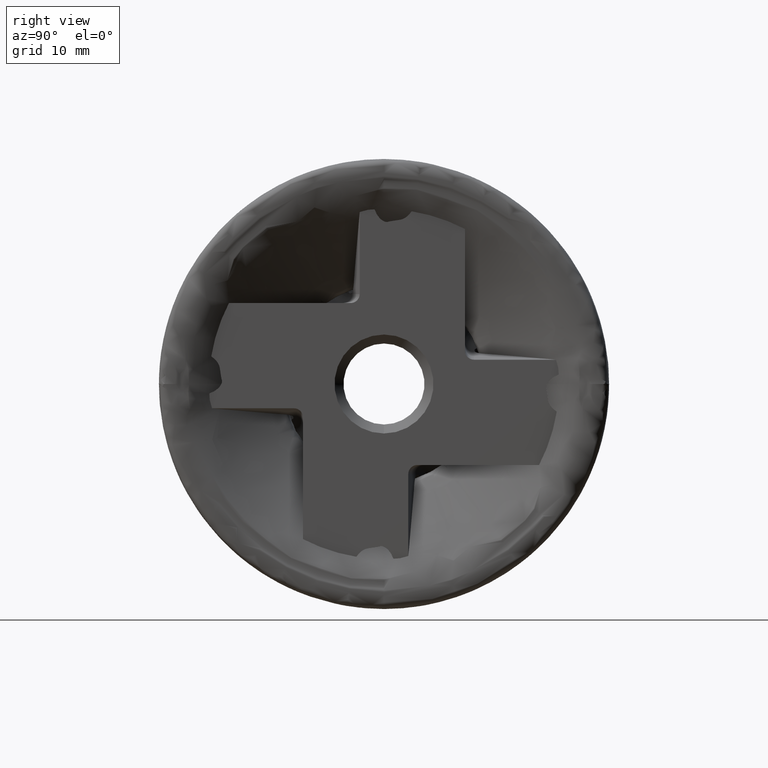
[diagram: clean part render]
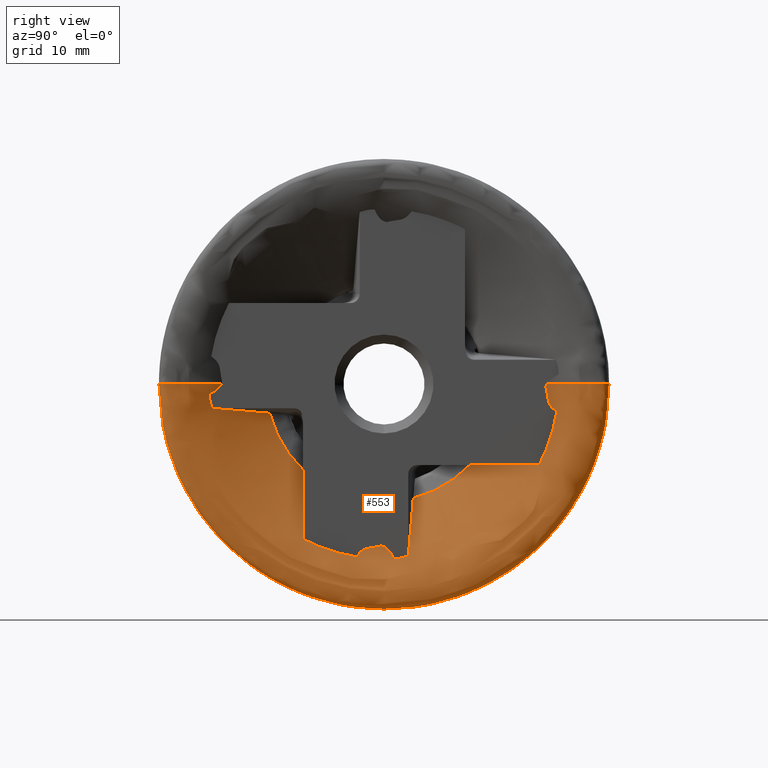
[diagram: same view with one face highlighted and labeled with its STEP entity id]
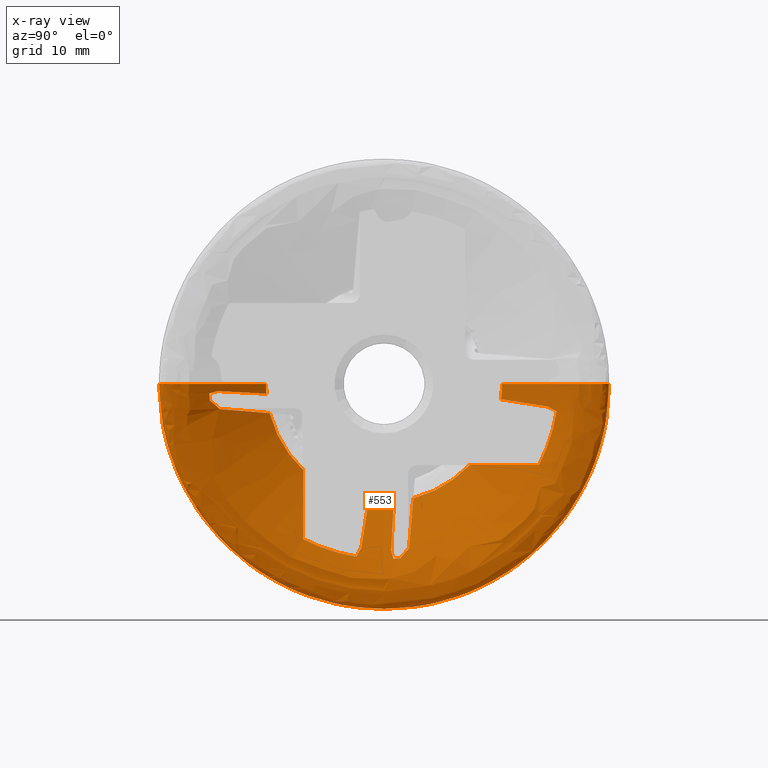
[diagram: x-ray of the same camera — body ghosted, the highlighted face saturated]
A machine part, right view. The second image highlights one B-rep face of the part: STEP entity #553.
The next image is the same camera in x-ray: the body ghosted, the highlighted face saturated — about 0% of this face is hidden behind the body in this view.
In plain terms, the highlighted face is a freeform B-spline surface patch.
Its self-contained STEP definition (entity closure, byte-faithful):
#42 = CARTESIAN_POINT ( 'NONE',  ( -1.982943571274166500, 24.99707227855306300, -3.061258455398504000E-015 ) ) ;
#87 = CARTESIAN_POINT ( 'NONE',  ( -3.737043504535054100, 13.28257882366968100, -26.56515764733936200 ) ) ;
#93 = CARTESIAN_POINT ( 'NONE',  ( -9.070700521916380800, 25.00696883977554600, -3.062470434600872400E-015 ) ) ;
#104 = CARTESIAN_POINT ( 'NONE',  ( -8.529202415656820700, 25.00622832351795200, -50.01245664703590400 ) ) ;
#125 = CARTESIAN_POINT ( 'NONE',  ( -1.949596630865900500, 2.938131210587969600, -16.40795681269416700 ) ) ;
#174 = B_SPLINE_CURVE_WITH_KNOTS ( 'NONE', 3,
 ( #12392, #5352, #7718, #14823, #4219, #12445, #13634, #733, #8957, #1923 ),
 .UNSPECIFIED., .F., .F.,
 ( 4, 2, 2, 2, 4 ),
 ( 0.007151799203513131200, 0.009224641312727516200, 0.01129748342194189900, 0.01337032553115628400, 0.01544316764037066700 ),
 .UNSPECIFIED. ) ;
#239 = CARTESIAN_POINT ( 'NONE',  ( -2.894561595242197200, -1.993313231358978500, -14.73134646740835400 ) ) ;
#260 = CARTESIAN_POINT ( 'NONE',  ( -4.018235486535038700, -25.00003263495784400, 0.0000000000000000000 ) ) ;
#313 = VERTEX_POINT ( 'NONE', #10058 ) ;
#353 = CARTESIAN_POINT ( 'NONE',  ( 0.8233067474905672000, 24.22577362782330800, -2.966801613018217800E-015 ) ) ;
#364 = CARTESIAN_POINT ( 'NONE',  ( -1.221069714492025300, -24.99597716568541000, 0.0000000000000000000 ) ) ;
#381 = CARTESIAN_POINT ( 'NONE',  ( 0.2182216709355945800, -24.96960125753999500, 0.0000000000000000000 ) ) ;
#406 = CARTESIAN_POINT ( 'NONE',  ( -3.828135706458391000, -12.70121444616664000, -3.250131983347338300 ) ) ;
#411 = CARTESIAN_POINT ( 'NONE',  ( -3.201173026740801400, -24.99881942078366800, -49.99763884156731600 ) ) ;
#474 = CIRCLE ( 'NONE', #5034, 19.44363888195282500 ) ;
#486 = CARTESIAN_POINT ( 'NONE',  ( -0.9268250519325533800, 2.606205401770226500, -18.43319776861741800 ) ) ;
#501 = CARTESIAN_POINT ( 'NONE',  ( -3.477493851890837800, -24.99922674861226900, -49.99845349722451700 ) ) ;
#507 = B_SPLINE_CURVE_WITH_KNOTS ( 'NONE', 3,
 ( #2453, #7275, #4754, #4857, #239, #7177, #3618, #8399 ),
 .UNSPECIFIED., .F., .F.,
 ( 4, 2, 2, 4 ),
 ( 3.730663897181825200E-018, 0.002983544307963060300, 0.004475316461944588500, 0.005967088615926116300 ),
 .UNSPECIFIED. ) ;
#528 = CIRCLE ( 'NONE', #7726, 19.44363888195282500 ) ;
#551 = CARTESIAN_POINT ( 'NONE',  ( -2.638615673458840800, 24.99800324194209400, -3.061372465531954400E-015 ) ) ;
#553 = ADVANCED_FACE ( 'NONE', ( #13852 ), #12799, .F. ) ;
#576 = DIRECTION ( 'NONE',  ( 1.000000000000000000, -0.0000000000000000000, -0.0000000000000000000 ) ) ;
#587 = CARTESIAN_POINT ( 'NONE',  ( -0.6771579839610315500, 2.114550017236072100, -18.98148912382749700 ) ) ;
#605 = CARTESIAN_POINT ( 'NONE',  ( 0.6056315298871910400, -24.76006291733532200, 0.0000000000000000000 ) ) ;
#659 = CARTESIAN_POINT ( 'NONE',  ( 0.8388578147460437100, -23.72667165437440700, 0.0000000000000000000 ) ) ;
#680 = CARTESIAN_POINT ( 'NONE',  ( -0.6823926266885241800, -2.898146333191847600, -18.86658419407667600 ) ) ;
#707 = CARTESIAN_POINT ( 'NONE',  ( -5.819744439819112700, -25.00251527988277200, 0.0000000000000000000 ) ) ;
#709 = CARTESIAN_POINT ( 'NONE',  ( 0.8363500280621846100, -23.99914851830021000, -47.99829703660041200 ) ) ;
#732 = EDGE_CURVE ( 'NONE', #1754, #1091, #1890, .T. ) ;
#733 = CARTESIAN_POINT ( 'NONE',  ( -1.080610210530758900, -8.999999999999834800, -15.96261726679232300 ) ) ;
#767 = CARTESIAN_POINT ( 'NONE',  ( 0.8403385023543916700, 23.44701681976944500, -46.89403363953889000 ) ) ;
#795 = CARTESIAN_POINT ( 'NONE',  ( -3.828135706458391000, 3.250131983347205500, -12.70121444616667400 ) ) ;
#814 = CARTESIAN_POINT ( 'NONE',  ( -0.01529412357864152000, -24.99495090465619300, -49.98990180931237900 ) ) ;
#852 = CARTESIAN_POINT ( 'NONE',  ( 0.6831215235881350500, 22.30153634775718200, -2.731150510434918500E-015 ) ) ;
#904 = CARTESIAN_POINT ( 'NONE',  ( 0.6674815944254909300, -21.87139179488563900, 0.0000000000000000000 ) ) ;
#912 = CARTESIAN_POINT ( 'NONE',  ( 0.8037535942965430300, -22.90600558317544600, 0.0000000000000000000 ) ) ;
#950 = CARTESIAN_POINT ( 'NONE',  ( -1.507753404059215300, 17.34088300479001900, -2.403392356818334200 ) ) ;
#959 = CARTESIAN_POINT ( 'NONE',  ( -0.4503236334907437200, 19.54048526652388100, -39.08097053304776100 ) ) ;
#964 = CARTESIAN_POINT ( 'NONE',  ( 0.6594678101891516800, -21.75575584881071100, 0.0000000000000000000 ) ) ;
#1006 = CARTESIAN_POINT ( 'NONE',  ( 0.7417528403662740900, 22.75738887112991200, -45.51477774225983100 ) ) ;
#1007 = VERTEX_POINT ( 'NONE', #14314 ) ;
#1013 = CARTESIAN_POINT ( 'NONE',  ( -3.280726123808802400, -14.14629710952314100, 0.0000000000000000000 ) ) ;
#1054 = CARTESIAN_POINT ( 'NONE',  ( -3.828135706458392700, 12.99939009942889200, -1.702957239498292600 ) ) ;
#1091 = VERTEX_POINT ( 'NONE', #10465 ) ;
#1121 = CARTESIAN_POINT ( 'NONE',  ( -1.489957351126417900, -24.99636580161525100, 0.0000000000000000000 ) ) ;
#1124 = CARTESIAN_POINT ( 'NONE',  ( -2.982303237655163500, 24.99849013503983400, -3.061432092739322000E-015 ) ) ;
#1224 = CARTESIAN_POINT ( 'NONE',  ( -1.714085393527467800, -24.99668578174173900, 0.0000000000000000000 ) ) ;
#1246 = CARTESIAN_POINT ( 'NONE',  ( -0.9789801206615713600, -18.49849074032983900, -0.8004576746514825400 ) ) ;
#1261 = CARTESIAN_POINT ( 'NONE',  ( -3.828135706458392700, 12.99939009942889200, -1.702957239498292600 ) ) ;
#1273 = CARTESIAN_POINT ( 'NONE',  ( -3.587402505050044900, 13.56497241537829400, -27.12994483075658900 ) ) ;
#1275 = AXIS2_PLACEMENT_3D ( 'NONE', #14726, #576, #8797 ) ;
#1295 = CARTESIAN_POINT ( 'NONE',  ( -6.740891049449385400, 25.00378292887649700, -50.00756585775299400 ) ) ;
#1350 = CARTESIAN_POINT ( 'NONE',  ( -9.850437967370329100, -25.00811483845791700, -50.01622967691582000 ) ) ;
#1393 = CARTESIAN_POINT ( 'NONE',  ( 0.6056315298871910400, 24.76006291733532200, -3.032233179840177800E-015 ) ) ;
#1446 = CARTESIAN_POINT ( 'NONE',  ( -4.523989719856072800, -25.00072620044688800, -50.00145240089375400 ) ) ;
#1533 = EDGE_CURVE ( 'NONE', #4949, #11991, #3268, .T. ) ;
#1541 = CARTESIAN_POINT ( 'NONE',  ( 0.7417528403662739800, 22.75738887112991900, -2.786976343798085300E-015 ) ) ;
#1551 = CARTESIAN_POINT ( 'NONE',  ( -2.982303237655163000, 24.99849013503983400, -49.99698027007966800 ) ) ;
#1588 = CARTESIAN_POINT ( 'NONE',  ( 0.8037535942965430300, 22.90600558317544600, -2.805176641868721300E-015 ) ) ;
#1597 = CARTESIAN_POINT ( 'NONE',  ( -1.489957351126417900, 24.99636580161524400, -49.99273160323048900 ) ) ;
#1649 = CARTESIAN_POINT ( 'NONE',  ( -3.753342576159772300, 24.99963282978284300, -3.061572032485264700E-015 ) ) ;
#1676 = B_SPLINE_CURVE_WITH_KNOTS ( 'NONE', 3,
 ( #14306, #6075, #2542, #10746, #2389, #125, #10792, #8238 ),
 .UNSPECIFIED., .F., .F.,
 ( 4, 2, 2, 4 ),
 ( 0.02009709190245825800, 0.02167842849441737800, 0.02325976508637649800, 0.02642243827029473700 ),
 .UNSPECIFIED. ) ;
#1696 = CARTESIAN_POINT ( 'NONE',  ( -2.449068998484652300, -24.99773403827664400, -49.99546807655328700 ) ) ;
#1749 = CARTESIAN_POINT ( 'NONE',  ( 0.7433104719802813300, -24.57053507000985300, 0.0000000000000000000 ) ) ;
#1754 = VERTEX_POINT ( 'NONE', #3978 ) ;
#1798 = CARTESIAN_POINT ( 'NONE',  ( -0.1969863055908947800, 24.99365375730812000, -49.98730751461624100 ) ) ;
#1813 = CARTESIAN_POINT ( 'NONE',  ( -2.636106904125251400, -15.32696306013533100, -0.9851818886670463700 ) ) ;
#1844 = AXIS2_PLACEMENT_3D ( 'NONE', #13518, #14603, #12329 ) ;
#1853 = CARTESIAN_POINT ( 'NONE',  ( 0.8359610050056202100, -23.11807159684222800, -46.23614319368444800 ) ) ;
#1890 = B_SPLINE_CURVE_WITH_KNOTS ( 'NONE', 3,
 ( #9780, #486, #5222, #587, #11068, #6384 ),
 .UNSPECIFIED., .F., .F.,
 ( 4, 2, 4 ),
 ( 0.0007907119729293575600, 0.001568091070632011300, 0.002345470168334664900 ),
 .UNSPECIFIED. ) ;
#1904 = CARTESIAN_POINT ( 'NONE',  ( 0.8388578147460436000, 23.72667165437440300, -47.45334330874880600 ) ) ;
#1923 = CARTESIAN_POINT ( 'NONE',  ( -0.4999999999903296800, -8.999999999999818800, -17.23528627474824800 ) ) ;
#1950 = CARTESIAN_POINT ( 'NONE',  ( 0.8384821140611190500, -23.25755740137551400, 0.0000000000000000000 ) ) ;
#1995 = CARTESIAN_POINT ( 'NONE',  ( -2.918546562641704400, -14.81720514715979000, 0.0000000000000000000 ) ) ;
#2028 = DIRECTION ( 'NONE',  ( -1.000000000000000000, 0.0000000000000000000, 0.0000000000000000000 ) ) ;
#2050 = CARTESIAN_POINT ( 'NONE',  ( 0.6594678101891516800, -21.75575584881071100, 0.0000000000000000000 ) ) ;
#2078 = ORIENTED_EDGE ( 'NONE', *, *, #10793, .F. ) ;
#2089 = CARTESIAN_POINT ( 'NONE',  ( 0.6672210770414568300, 21.68477220292298600, -43.36954440584597800 ) ) ;
#2094 = CARTESIAN_POINT ( 'NONE',  ( 0.8363500280621846100, -23.99914851830021000, 0.0000000000000000000 ) ) ;
#2122 = CARTESIAN_POINT ( 'NONE',  ( -1.949596631911375100, -16.40795681066101300, -2.938131210761782100 ) ) ;
#2139 = CARTESIAN_POINT ( 'NONE',  ( -0.8672760397352683400, -18.72656933030299000, -37.45313866060597300 ) ) ;
#2144 = CARTESIAN_POINT ( 'NONE',  ( -2.918546562641704400, -14.81720514715979000, 0.0000000000000000000 ) ) ;
#2171 = CIRCLE ( 'NONE', #1844, 13.11046171256716200 ) ;
#2193 = CARTESIAN_POINT ( 'NONE',  ( 0.3758235003554644700, 21.09143110013359000, -2.582955358621554000E-015 ) ) ;
#2217 = DIRECTION ( 'NONE',  ( 1.000000000000000000, -0.0000000000000000000, -0.0000000000000000000 ) ) ;
#2224 = CARTESIAN_POINT ( 'NONE',  ( -2.215688779132376900, -24.99740185574805600, 0.0000000000000000000 ) ) ;
#2251 = CARTESIAN_POINT ( 'NONE',  ( -3.280726123808802400, 14.14629710952314100, -1.732421747496496800E-015 ) ) ;
#2279 = CARTESIAN_POINT ( 'NONE',  ( -0.6591167853640376200, -19.10832002898459700, -0.9729716794115940100 ) ) ;
#2296 = CARTESIAN_POINT ( 'NONE',  ( -3.737043504535054100, 13.28257882366968400, -1.626646764082949500E-015 ) ) ;
#2302 = CARTESIAN_POINT ( 'NONE',  ( 0.8384821140611190500, -23.25755740137551400, 0.0000000000000000000 ) ) ;
#2305 = CARTESIAN_POINT ( 'NONE',  ( -0.4517732574768075200, 24.99515061475622300, -3.061023119456720600E-015 ) ) ;
#2346 = CARTESIAN_POINT ( 'NONE',  ( -3.828135706458392700, 13.11046171256716200, -1.605568497163930100E-015 ) ) ;
#2373 = CARTESIAN_POINT ( 'NONE',  ( -9.506703195961037500, -25.00728678259229900, 0.0000000000000000000 ) ) ;
#2389 = CARTESIAN_POINT ( 'NONE',  ( -2.653716837152189100, 3.055076368307100500, -15.01775737348845200 ) ) ;
#2396 = AXIS2_PLACEMENT_3D ( 'NONE', #5441, #14920, #6731 ) ;
#2403 = CARTESIAN_POINT ( 'NONE',  ( -3.737043504535054100, -13.28257882366968400, -26.56515764733936200 ) ) ;
#2409 = CARTESIAN_POINT ( 'NONE',  ( -4.837229015800551800, 25.00115876725082800, -3.061758905928851400E-015 ) ) ;
#2420 = CARTESIAN_POINT ( 'NONE',  ( -9.506703195961039300, -25.00728678259230300, -50.01457356518458400 ) ) ;
#2453 = CARTESIAN_POINT ( 'NONE',  ( -1.046115831253585200, -2.528823415414268400, -18.21280082579233900 ) ) ;
#2464 = VERTEX_POINT ( 'NONE', #14506 ) ;
#2471 = CARTESIAN_POINT ( 'NONE',  ( -9.070700521916380800, -25.00696883977554600, -50.01393767955107700 ) ) ;
#2518 = CARTESIAN_POINT ( 'NONE',  ( -5.819744439819111800, -25.00251527988277500, -50.00503055976553000 ) ) ;
#2542 = CARTESIAN_POINT ( 'NONE',  ( -3.361506883276514500, 3.172631038428848500, -13.62945827164480100 ) ) ;
#2560 = CARTESIAN_POINT ( 'NONE',  ( 0.6672210770414568300, 21.68477220292299300, -2.655618686854914300E-015 ) ) ;
#2571 = CARTESIAN_POINT ( 'NONE',  ( -9.506703195961039300, 25.00728678259229200, -50.01457356518458400 ) ) ;
#2575 = EDGE_CURVE ( 'NONE', #14343, #14442, #3363, .T. ) ;
#2611 = CARTESIAN_POINT ( 'NONE',  ( 0.8403385023543917800, 23.44701681976945600, -2.871431409788481500E-015 ) ) ;
#2621 = CARTESIAN_POINT ( 'NONE',  ( -4.018235486535038700, 25.00003263495784000, -50.00006526991568000 ) ) ;
#2648 = EDGE_CURVE ( 'NONE', #8895, #8121, #174, .T. ) ;
#2666 = CARTESIAN_POINT ( 'NONE',  ( -0.6823926266883489900, 18.86658419407698200, -2.898146333192132700 ) ) ;
#2671 = CARTESIAN_POINT ( 'NONE',  ( -2.805831733867958800, 24.99824177718517900, -49.99648355437035700 ) ) ;
#2709 = CARTESIAN_POINT ( 'NONE',  ( -1.897953293001310500, 16.76303200248223700, -2.052879348584451900E-015 ) ) ;
#2718 = CARTESIAN_POINT ( 'NONE',  ( -3.753342576159772300, 24.99963282978283600, -49.99926565956567300 ) ) ;
#2762 = CIRCLE ( 'NONE', #2396, 13.11046171256716200 ) ;
#2769 = CARTESIAN_POINT ( 'NONE',  ( -0.9968735653207596600, -24.99567245526614900, -49.99134491053227700 ) ) ;
#2788 = CARTESIAN_POINT ( 'NONE',  ( -0.9789801206615713600, -18.49849074032983900, -0.8004576746514825400 ) ) ;
#2823 = CARTESIAN_POINT ( 'NONE',  ( -2.805831733867958800, -24.99824177718518600, 0.0000000000000000000 ) ) ;
#2844 = EDGE_CURVE ( 'NONE', #5263, #6126, #10139, .T. ) ;
#2867 = CARTESIAN_POINT ( 'NONE',  ( -0.7307023610611470500, 24.99524363999218200, -49.99048727998436400 ) ) ;
#2917 = CARTESIAN_POINT ( 'NONE',  ( 0.6056315298871909300, 24.76006291733531500, -49.52012583467063000 ) ) ;
#2971 = CARTESIAN_POINT ( 'NONE',  ( 0.4067259756585763800, 24.90135801184817400, -49.80271602369634800 ) ) ;
#2986 = B_SPLINE_CURVE_WITH_KNOTS ( 'NONE', 3,
 ( #12454, #6591, #14831, #11221 ),
 .UNSPECIFIED., .F., .F.,
 ( 4, 4 ),
 ( 1.968834724214192500E-017, 0.001064837124203778700 ),
 .UNSPECIFIED. ) ;
#3008 = CARTESIAN_POINT ( 'NONE',  ( -9.070700521916380800, -25.00696883977554600, 0.0000000000000000000 ) ) ;
#3018 = CARTESIAN_POINT ( 'NONE',  ( 0.8359610050056202100, 23.11807159684222400, -46.23614319368444800 ) ) ;
#3067 = CARTESIAN_POINT ( 'NONE',  ( 0.8233067474905670900, 24.22577362782330500, -48.45154725564660900 ) ) ;
#3119 = CARTESIAN_POINT ( 'NONE',  ( -0.01529412357864152200, 24.99495090465619300, -3.060998662023244500E-015 ) ) ;
#3148 = CARTESIAN_POINT ( 'NONE',  ( -0.01529412357864152200, -24.99495090465619300, 0.0000000000000000000 ) ) ;
#3151 = CARTESIAN_POINT ( 'NONE',  ( -2.653716838843990000, -15.01775737013264800, -3.055076368588244100 ) ) ;
#3168 = CARTESIAN_POINT ( 'NONE',  ( -2.443346731846897300, 15.72703962300199400, -31.45407924600398900 ) ) ;
#3196 = CARTESIAN_POINT ( 'NONE',  ( -1.476110697179873900, -17.33263077369567600, -2.859491389292941200 ) ) ;
#3213 = CARTESIAN_POINT ( 'NONE',  ( 0.7105189621611052200, -22.54619812581803000, 0.0000000000000000000 ) ) ;
#3252 = CARTESIAN_POINT ( 'NONE',  ( -3.595765436221004800, 13.43196392135315200, -1.781102088588996300 ) ) ;
#3260 = CARTESIAN_POINT ( 'NONE',  ( -3.828135706458391000, -13.11046171256716200, 0.0000000000000000000 ) ) ;
#3262 = CARTESIAN_POINT ( 'NONE',  ( 0.6672210770414568300, -21.68477220292299300, -43.36954440584597800 ) ) ;
#3267 = CARTESIAN_POINT ( 'NONE',  ( -1.897953293001310500, -16.76303200248223700, 0.0000000000000000000 ) ) ;
#3268 = B_SPLINE_CURVE_WITH_KNOTS ( 'NONE', 3,
 ( #5704, #8220, #2373, #3008, #13834, #9513, #12190, #707, #13992, #6898, #10273, #9155, #11531, #7775, #6486, #11519, #15004, #13862, #11545, #7782, #2224, #11722, #1224, #1121, #14150, #12762, #8293, #3654, #13029, #3148, #9708, #381, #5581, #10780, #3468, #11692, #10829, #2094, #12736, #11699, #2302, #3421, #10340, #912, #11652, #8007, #10502, #5784, #5622, #964, #4609, #3476, #13866, #4661, #9126, #12830, #10296, #3267, #15113, #2144, #1013, #6875, #14063, #14012 ),
 .UNSPECIFIED., .F., .F.,
 ( 4, 1, 1, 1, 1, 1, 1, 1, 1, 1, 1, 1, 1, 1, 1, 1, 1, 1, 1, 1, 1, 1, 1, 1, 1, 1, 1, 1, 1, 1, 1, 1, 1, 1, 1, 1, 1, 1, 1, 1, 1, 1, 1, 1, 1, 1, 1, 1, 1, 1, 1, 1, 1, 1, 1, 1, 1, 1, 1, 1, 1, 4 ),
 ( 0.5000000000000001100, 0.5053796363000224700, 0.5167049230060831700, 0.5280302097121440900, 0.5401831804789865000, 0.5681486835804170400, 0.5915325010546218500, 0.5993910094970418300, 0.6089948571173288100, 0.6138386086628567800, 0.6195248184139663400, 0.6252620270916179300, 0.6300793621592628600, 0.6365511121850859800, 0.6429925173414595700, 0.6478401972785540200, 0.6506192172793811000, 0.6543354227373839900, 0.6585881988866708600, 0.6628025443143394900, 0.6693362004947877000, 0.6735481604705646500, 0.6800837081947670400, 0.6837422849645955500, 0.6908312158947463900, 0.6944941804318480700, 0.7008507100667825700, 0.7087598872140826700, 0.7108702042388187500, 0.7125301365404066400, 0.7151148973553653800, 0.7196033609814023200, 0.7253169123311014000, 0.7304541404386339900, 0.7346345748098652700, 0.7372948287578651200, 0.7414053926558406000, 0.7492738520702169100, 0.7547784804573458600, 0.7593895983962692900, 0.7614446065184863300, 0.7637565456908022000, 0.7654907957678429600, 0.7691511478071126900, 0.7740688973193257100, 0.7791147075483378900, 0.7849964153789096300, 0.7888542862311959100, 0.7919564531734899500, 0.7925380898199895200, 0.7932956571390226100, 0.8034436087489857900, 0.8237539532599109600, 0.8440803744261093900, 0.8653367652010333100, 0.8824997328387880200, 0.9134822948765106700, 0.9384785874102749000, 0.9577540989874360200, 0.9794579232296344300, 0.9874831381225016600, 1.000000000000000000 ),
 .UNSPECIFIED. ) ;
#3309 = CARTESIAN_POINT ( 'NONE',  ( -3.363757820809667000, 13.86530385638183000, -1.855953209781907400 ) ) ;
#3318 = CARTESIAN_POINT ( 'NONE',  ( 0.7417528403662739800, 22.75738887112991900, -2.786976343798085300E-015 ) ) ;
#3363 = B_SPLINE_CURVE_WITH_KNOTS ( 'NONE', 3,
 ( #6427, #680, #8901, #4115 ),
 .UNSPECIFIED., .F., .F.,
 ( 4, 4 ),
 ( 0.003622248480574350100, 0.004897737686038972300 ),
 .UNSPECIFIED. ) ;
#3369 = CARTESIAN_POINT ( 'NONE',  ( -2.443346731846897300, 15.72703962300200000, -1.926006873437299800E-015 ) ) ;
#3415 = EDGE_CURVE ( 'NONE', #11960, #13581, #13824, .T. ) ;
#3421 = CARTESIAN_POINT ( 'NONE',  ( 0.8359610050056200900, -23.11807159684222800, 0.0000000000000000000 ) ) ;
#3424 = CARTESIAN_POINT ( 'NONE',  ( -9.850437967370329100, -25.00811483845792100, 0.0000000000000000000 ) ) ;
#3448 = CARTESIAN_POINT ( 'NONE',  ( -0.4999999999999983900, -19.41503793453299000, -1.054227192038218700 ) ) ;
#3468 = CARTESIAN_POINT ( 'NONE',  ( 0.7433104719802813300, -24.57053507000985300, 0.0000000000000000000 ) ) ;
#3472 = CARTESIAN_POINT ( 'NONE',  ( -1.046115831253585200, -2.528823415414268400, -18.21280082579233900 ) ) ;
#3476 = CARTESIAN_POINT ( 'NONE',  ( 0.5601236096013305600, -21.53214942904465400, 0.0000000000000000000 ) ) ;
#3518 = CARTESIAN_POINT ( 'NONE',  ( -3.576863787465420300, 10.18624176052648300, -8.999999999999998200 ) ) ;
#3545 = EDGE_LOOP ( 'NONE', ( #4191, #6770, #6701, #8930, #13350, #4867, #12470, #12508, #12105, #7758, #3955, #8287, #4793, #11170, #6657, #5321, #8645, #14492, #5376, #7939, #4014, #11038, #2078, #11633, #7209, #12227 ) ) ;
#3582 = CARTESIAN_POINT ( 'NONE',  ( -5.819744439819112700, 25.00251527988277200, -3.061925030814122700E-015 ) ) ;
#3618 = CARTESIAN_POINT ( 'NONE',  ( -3.595765436221002500, -1.781102088589039800, -13.43196392135314100 ) ) ;
#3639 = CARTESIAN_POINT ( 'NONE',  ( -9.766726951269618000, -25.00796502058461400, -50.01593004116920600 ) ) ;
#3654 = CARTESIAN_POINT ( 'NONE',  ( -0.4517732574768075200, -24.99515061475622300, 0.0000000000000000000 ) ) ;
#3683 = CARTESIAN_POINT ( 'NONE',  ( 0.8295635054181406100, 24.39839158610071100, -2.987941216026195200E-015 ) ) ;
#3691 = CARTESIAN_POINT ( 'NONE',  ( -9.850437967370329100, -25.00811483845792100, 0.0000000000000000000 ) ) ;
#3739 = CARTESIAN_POINT ( 'NONE',  ( -3.587402505050044900, 13.56497241537830000, -1.661230004901517400E-015 ) ) ;
#3748 = CARTESIAN_POINT ( 'NONE',  ( -6.740891049449386300, -25.00378292887650400, 0.0000000000000000000 ) ) ;
#3789 = CARTESIAN_POINT ( 'NONE',  ( -4.837229015800551800, -25.00115876725082800, 0.0000000000000000000 ) ) ;
#3801 = CARTESIAN_POINT ( 'NONE',  ( -3.590130411367853400, 1.075368615749130000, -13.51757750977984100 ) ) ;
#3839 = CARTESIAN_POINT ( 'NONE',  ( -3.477493851890837800, -24.99922674861226900, 0.0000000000000000000 ) ) ;
#3882 = CARTESIAN_POINT ( 'NONE',  ( 0.6674815944254909300, 21.87139179488563900, -2.678472995450438200E-015 ) ) ;
#3891 = CARTESIAN_POINT ( 'NONE',  ( -3.201173026740801400, 24.99881942078366800, -3.061472418612540800E-015 ) ) ;
#3940 = CARTESIAN_POINT ( 'NONE',  ( -2.215688779132376900, -24.99740185574805200, -49.99480371149610400 ) ) ;
#3955 = ORIENTED_EDGE ( 'NONE', *, *, #13347, .T. ) ;
#3978 = CARTESIAN_POINT ( 'NONE',  ( -1.003729365977451500, 2.781035028023990400, -18.25788129585024700 ) ) ;
#3990 = CARTESIAN_POINT ( 'NONE',  ( -2.638615673458840800, 24.99800324194208300, -49.99600648388416600 ) ) ;
#4011 = CARTESIAN_POINT ( 'NONE',  ( -3.828135706458391000, 0.0000000000000000000, 0.0000000000000000000 ) ) ;
#4014 = ORIENTED_EDGE ( 'NONE', *, *, #2844, .T. ) ;
#4035 = VERTEX_POINT ( 'NONE', #6467 ) ;
#4048 = CARTESIAN_POINT ( 'NONE',  ( -3.201173026740801400, -24.99881942078366800, 0.0000000000000000000 ) ) ;
#4097 = CARTESIAN_POINT ( 'NONE',  ( 0.8295635054181405000, 24.39839158610070400, -48.79678317220140800 ) ) ;
#4115 = CARTESIAN_POINT ( 'NONE',  ( -1.046115831253585200, -2.528823415414268400, -18.21280082579233900 ) ) ;
#4143 = CARTESIAN_POINT ( 'NONE',  ( 0.2182216709355945800, -24.96960125753999500, 0.0000000000000000000 ) ) ;
#4191 = ORIENTED_EDGE ( 'NONE', *, *, #10400, .T. ) ;
#4195 = CARTESIAN_POINT ( 'NONE',  ( 0.8359610050056200900, 23.11807159684222800, -2.831147238353217300E-015 ) ) ;
#4219 = CARTESIAN_POINT ( 'NONE',  ( -2.500778201367137100, -8.999999999999868500, -12.76771501166253500 ) ) ;
#4250 = CARTESIAN_POINT ( 'NONE',  ( 0.08360697486118741400, -24.99160188443946900, -49.98320376887892300 ) ) ;
#4291 = CARTESIAN_POINT ( 'NONE',  ( -0.9789801206615677000, 0.8004576746513290000, -18.49849074032985300 ) ) ;
#4296 = CARTESIAN_POINT ( 'NONE',  ( 0.8384821140611190500, -23.25755740137551400, -46.51511480275102200 ) ) ;
#4311 = CARTESIAN_POINT ( 'NONE',  ( -9.850437967370329100, 0.0000000000000000000, 0.0000000000000000000 ) ) ;
#4321 = EDGE_CURVE ( 'NONE', #9840, #313, #2986, .T. ) ;
#4348 = CARTESIAN_POINT ( 'NONE',  ( -1.370289589837821300, 17.77128939005519100, -2.176355266825241300E-015 ) ) ;
#4399 = VERTEX_POINT ( 'NONE', #795 ) ;
#4400 = CARTESIAN_POINT ( 'NONE',  ( -0.4503236334907437200, -19.54048526652388400, 0.0000000000000000000 ) ) ;
#4452 = CARTESIAN_POINT ( 'NONE',  ( 0.6831215235881350500, -22.30153634775717800, -44.60307269551435600 ) ) ;
#4483 = CARTESIAN_POINT ( 'NONE',  ( -3.595156547108344200, -13.16551018667380100, -3.211437191900917000 ) ) ;
#4497 = CARTESIAN_POINT ( 'NONE',  ( -1.897953293001310500, -16.76303200248223700, 0.0000000000000000000 ) ) ;
#4546 = CARTESIAN_POINT ( 'NONE',  ( 0.5601236096013306700, -21.53214942904465400, -43.06429885808930200 ) ) ;
#4594 = CARTESIAN_POINT ( 'NONE',  ( -1.970919119064493200, 16.47027416882958000, -2.274195820426006400 ) ) ;
#4609 = CARTESIAN_POINT ( 'NONE',  ( 0.6672210770414568300, -21.68477220292299300, 0.0000000000000000000 ) ) ;
#4613 = CARTESIAN_POINT ( 'NONE',  ( -1.221069714492025300, 24.99597716568541000, -3.061124342751696700E-015 ) ) ;
#4661 = CARTESIAN_POINT ( 'NONE',  ( -0.01259013153098092900, -20.39595196459037400, 0.0000000000000000000 ) ) ;
#4663 = CARTESIAN_POINT ( 'NONE',  ( -0.1969863055908947500, 24.99365375730812700, -3.060839807288461700E-015 ) ) ;
#4724 = CARTESIAN_POINT ( 'NONE',  ( -0.6771579839610220000, -18.98148912382749400, -2.114550017236277200 ) ) ;
#4754 = CARTESIAN_POINT ( 'NONE',  ( -1.970919119064493700, -2.274195820426062800, -16.47027416882955500 ) ) ;
#4758 = CARTESIAN_POINT ( 'NONE',  ( -3.737043504535054100, -13.28257882366968400, 0.0000000000000000000 ) ) ;
#4793 = ORIENTED_EDGE ( 'NONE', *, *, #9410, .F. ) ;
#4821 = CARTESIAN_POINT ( 'NONE',  ( -5.184264639884006000, 25.00163855870263400, -3.061817663435422700E-015 ) ) ;
#4825 = EDGE_CURVE ( 'NONE', #8228, #8895, #2171, .T. ) ;
#4832 = CARTESIAN_POINT ( 'NONE',  ( -5.819744439819111800, 25.00251527988276500, -50.00503055976553000 ) ) ;
#4857 = CARTESIAN_POINT ( 'NONE',  ( -2.663676883143229400, -2.065427633156678300, -15.16576365234770500 ) ) ;
#4867 = ORIENTED_EDGE ( 'NONE', *, *, #9898, .T. ) ;
#4868 = CARTESIAN_POINT ( 'NONE',  ( 0.8363500280621846100, 23.99914851830021000, -2.939048041519829500E-015 ) ) ;
#4921 = CARTESIAN_POINT ( 'NONE',  ( 0.8384821140611190500, 23.25755740137551400, -2.848229322758035500E-015 ) ) ;
#4929 = CARTESIAN_POINT ( 'NONE',  ( -4.270907119785184700, -25.00037336867696400, -50.00074673735391400 ) ) ;
#4949 = VERTEX_POINT ( 'NONE', #3424 ) ;
#4975 = CARTESIAN_POINT ( 'NONE',  ( -1.370289589837821300, 17.77128939005519100, -2.176355266825241300E-015 ) ) ;
#4985 = CARTESIAN_POINT ( 'NONE',  ( -5.184264639884006900, 25.00163855870263100, -50.00327711740526100 ) ) ;
#5025 = CARTESIAN_POINT ( 'NONE',  ( -3.828135706458391000, 13.11046171256716200, -1.605568497152204300E-015 ) ) ;
#5034 = AXIS2_PLACEMENT_3D ( 'NONE', #8909, #6693, #11330 ) ;
#5038 = CARTESIAN_POINT ( 'NONE',  ( -0.7307023610611470500, -24.99524363999219300, -49.99048727998436400 ) ) ;
#5052 = VERTEX_POINT ( 'NONE', #5894 ) ;
#5076 = CARTESIAN_POINT ( 'NONE',  ( 0.7433104719802813300, 24.57053507000985300, -3.009022712682535400E-015 ) ) ;
#5085 = CARTESIAN_POINT ( 'NONE',  ( -2.982303237655163500, 24.99849013503983400, -3.061432092739322000E-015 ) ) ;
#5136 = CARTESIAN_POINT ( 'NONE',  ( -1.982943571274166500, -24.99707227855306300, 0.0000000000000000000 ) ) ;
#5143 = CARTESIAN_POINT ( 'NONE',  ( -2.872274149097252300, 1.006935329817918400, -14.87334859077662800 ) ) ;
#5187 = CARTESIAN_POINT ( 'NONE',  ( -2.215688779132376900, -24.99740185574805600, 0.0000000000000000000 ) ) ;
#5191 = EDGE_CURVE ( 'NONE', #1007, #13335, #12109, .T. ) ;
#5222 = CARTESIAN_POINT ( 'NONE',  ( -0.8453217989527731500, 2.439342338378254200, -18.61393518268328500 ) ) ;
#5230 = CARTESIAN_POINT ( 'NONE',  ( -1.003729365977443800, -18.25788129585023600, -2.781035028024196900 ) ) ;
#5234 = CARTESIAN_POINT ( 'NONE',  ( -2.638615673458840800, -24.99800324194209400, -49.99600648388416600 ) ) ;
#5263 = VERTEX_POINT ( 'NONE', #5230 ) ;
#5279 = CARTESIAN_POINT ( 'NONE',  ( -0.1969863055908947800, -24.99365375730812700, -49.98730751461624100 ) ) ;
#5321 = ORIENTED_EDGE ( 'NONE', *, *, #2575, .F. ) ;
#5330 = CARTESIAN_POINT ( 'NONE',  ( 0.8233067474905670900, -24.22577362782330800, -48.45154725564660900 ) ) ;
#5344 = CARTESIAN_POINT ( 'NONE',  ( -2.872274149097325100, -14.87334859077647500, -1.006935329818081900 ) ) ;
#5352 = CARTESIAN_POINT ( 'NONE',  ( -3.576863787464706700, -8.999999999999893400, -10.18624176052839500 ) ) ;
#5376 = ORIENTED_EDGE ( 'NONE', *, *, #4825, .F. ) ;
#5381 = CARTESIAN_POINT ( 'NONE',  ( 0.8037535942965430300, -22.90600558317544600, 0.0000000000000000000 ) ) ;
#5427 = CARTESIAN_POINT ( 'NONE',  ( 0.4067259756585763800, 24.90135801184818500, -3.049536838363217800E-015 ) ) ;
#5441 = CARTESIAN_POINT ( 'NONE',  ( -3.828135706458391000, 0.0000000000000000000, 0.0000000000000000000 ) ) ;
#5454 = CARTESIAN_POINT ( 'NONE',  ( -3.361506884279126700, -13.62945826968492300, -3.172631038595510300 ) ) ;
#5467 = CARTESIAN_POINT ( 'NONE',  ( -0.4999999999999983900, -19.41503793453299000, -1.054227192038218700 ) ) ;
#5476 = CARTESIAN_POINT ( 'NONE',  ( 0.8338116954728314000, -23.02266044892540000, -46.04532089785079300 ) ) ;
#5528 = CARTESIAN_POINT ( 'NONE',  ( 0.3758235003554644700, -21.09143110013359000, 0.0000000000000000000 ) ) ;
#5573 = CARTESIAN_POINT ( 'NONE',  ( 0.6674815944254909300, 21.87139179488563900, -2.678472995450438200E-015 ) ) ;
#5576 = EDGE_CURVE ( 'NONE', #9962, #5052, #13447, .T. ) ;
#5581 = CARTESIAN_POINT ( 'NONE',  ( 0.4067259756585763800, -24.90135801184818500, 0.0000000000000000000 ) ) ;
#5618 = CARTESIAN_POINT ( 'NONE',  ( 0.6594678101891516800, 21.75575584881071100, -2.664311676327734300E-015 ) ) ;
#5622 = CARTESIAN_POINT ( 'NONE',  ( 0.6674815944254909300, -21.87139179488563900, 0.0000000000000000000 ) ) ;
#5635 = CARTESIAN_POINT ( 'NONE',  ( -0.5000000000000013300, 0.0000000000000000000, 0.0000000000000000000 ) ) ;
#5673 = CARTESIAN_POINT ( 'NONE',  ( 0.3758235003554644100, -21.09143110013359000, -42.18286220026717400 ) ) ;
#5704 = CARTESIAN_POINT ( 'NONE',  ( -9.850437967370329100, -25.00811483845792100, 0.0000000000000000000 ) ) ;
#5719 = CARTESIAN_POINT ( 'NONE',  ( -2.663676883143219600, 15.16576365234772100, -2.065427633156613900 ) ) ;
#5722 = CARTESIAN_POINT ( 'NONE',  ( -3.314959368483259400, 10.83463842782598300, -9.000000000000000000 ) ) ;
#5727 = CARTESIAN_POINT ( 'NONE',  ( 0.5601236096013306700, 21.53214942904464700, -43.06429885808930200 ) ) ;
#5784 = CARTESIAN_POINT ( 'NONE',  ( 0.6693762474912168200, -22.07192764384586400, 0.0000000000000000000 ) ) ;
#5889 = CARTESIAN_POINT ( 'NONE',  ( -4.523989719856071900, 25.00072620044688100, -3.061705931773664400E-015 ) ) ;
#5894 = CARTESIAN_POINT ( 'NONE',  ( -0.5000000000000013300, 17.23528627472685000, -9.000000000000000000 ) ) ;
#5946 = CARTESIAN_POINT ( 'NONE',  ( -9.766726951269618000, -25.00796502058461000, 0.0000000000000000000 ) ) ;
#5985 = CARTESIAN_POINT ( 'NONE',  ( -1.714085393527467800, 24.99668578174173900, -3.061211123190217500E-015 ) ) ;
#5995 = CARTESIAN_POINT ( 'NONE',  ( -7.728857562448205900, -25.00513720947071100, -50.01027441894140700 ) ) ;
#6040 = CARTESIAN_POINT ( 'NONE',  ( 0.6693762474912168200, 22.07192764384586400, -2.703031554004781900E-015 ) ) ;
#6052 = CARTESIAN_POINT ( 'NONE',  ( -4.837229015800551800, 25.00115876725082800, -3.061758905928851400E-015 ) ) ;
#6075 = CARTESIAN_POINT ( 'NONE',  ( -3.595156546596068200, 3.211437191815698100, -13.16551018769475500 ) ) ;
#6087 = CIRCLE ( 'NONE', #12315, 19.44363888195282500 ) ;
#6095 = CARTESIAN_POINT ( 'NONE',  ( -2.443346731846897300, 15.72703962300200000, -1.926006873437299800E-015 ) ) ;
#6106 = CARTESIAN_POINT ( 'NONE',  ( -4.270907119785184700, 25.00037336867695700, -50.00074673735391400 ) ) ;
#6126 = VERTEX_POINT ( 'NONE', #14400 ) ;
#6152 = CARTESIAN_POINT ( 'NONE',  ( -4.523989719856071900, 25.00072620044688100, -3.061705931773664400E-015 ) ) ;
#6198 = CARTESIAN_POINT ( 'NONE',  ( 0.2182216709355945800, 24.96960125753999500, -3.057894225603208100E-015 ) ) ;
#6205 = CARTESIAN_POINT ( 'NONE',  ( -0.4517732574768075200, -24.99515061475622300, 0.0000000000000000000 ) ) ;
#6247 = CARTESIAN_POINT ( 'NONE',  ( 0.4067259756585763800, 24.90135801184818500, -3.049536838363217800E-015 ) ) ;
#6257 = CARTESIAN_POINT ( 'NONE',  ( -3.201173026740801400, 24.99881942078365800, -49.99763884156731600 ) ) ;
#6270 = CARTESIAN_POINT ( 'NONE',  ( -3.828135706458281700, 1.093770664272913500, -13.06475686917559600 ) ) ;
#6308 = CARTESIAN_POINT ( 'NONE',  ( -1.982943571274166500, -24.99707227855305900, -49.99414455710611100 ) ) ;
#6352 = CARTESIAN_POINT ( 'NONE',  ( -1.489957351126417900, 24.99636580161525100, -3.061171936926448500E-015 ) ) ;
#6384 = CARTESIAN_POINT ( 'NONE',  ( -0.5000000000000013300, 1.805337944820397000, -19.35964482827046900 ) ) ;
#6385 = EDGE_CURVE ( 'NONE', #6126, #12402, #11702, .T. ) ;
#6403 = CARTESIAN_POINT ( 'NONE',  ( -2.449068998484652800, 24.99773403827664700, -3.061339497591233600E-015 ) ) ;
#6427 = CARTESIAN_POINT ( 'NONE',  ( -0.5000000000000013300, -3.070371918206272500, -19.19968513428483400 ) ) ;
#6460 = CARTESIAN_POINT ( 'NONE',  ( -0.01529412357864152200, -24.99495090465619300, 0.0000000000000000000 ) ) ;
#6467 = CARTESIAN_POINT ( 'NONE',  ( -3.828135706458392700, -1.702957239498335700, -12.99939009942888500 ) ) ;
#6486 = CARTESIAN_POINT ( 'NONE',  ( -3.477493851890837800, -24.99922674861226900, 0.0000000000000000000 ) ) ;
#6513 = CARTESIAN_POINT ( 'NONE',  ( 0.8363500280621846100, -23.99914851830021000, 0.0000000000000000000 ) ) ;
#6561 = CARTESIAN_POINT ( 'NONE',  ( 0.08360697486118741400, -24.99160188443946500, 0.0000000000000000000 ) ) ;
#6591 = CARTESIAN_POINT ( 'NONE',  ( -0.8183164260259758700, 0.8890399527518384500, -18.80238260023128300 ) ) ;
#6614 = CARTESIAN_POINT ( 'NONE',  ( 0.6056315298871910400, 24.76006291733532200, -3.032233179840177800E-015 ) ) ;
#6657 = ORIENTED_EDGE ( 'NONE', *, *, #12178, .F. ) ;
#6665 = CARTESIAN_POINT ( 'NONE',  ( 0.8037535942965430300, 22.90600558317543900, -45.81201116635088500 ) ) ;
#6693 = DIRECTION ( 'NONE',  ( -1.000000000000000000, 0.0000000000000000000, 0.0000000000000000000 ) ) ;
#6701 = ORIENTED_EDGE ( 'NONE', *, *, #13870, .F. ) ;
#6718 = CARTESIAN_POINT ( 'NONE',  ( -2.918546562641704400, 14.81720514715979000, -1.814584285577892300E-015 ) ) ;
#6728 = DIRECTION ( 'NONE',  ( 1.000000000000000000, -0.0000000000000000000, -0.0000000000000000000 ) ) ;
#6731 = DIRECTION ( 'NONE',  ( 0.0000000000000000000, -1.000000000000000000, 0.0000000000000000000 ) ) ;
#6745 = CARTESIAN_POINT ( 'NONE',  ( -1.003729365977443800, -18.25788129585023600, -2.781035028024196900 ) ) ;
#6763 = CARTESIAN_POINT ( 'NONE',  ( 0.6693762474912168200, -22.07192764384586400, -44.14385528769171400 ) ) ;
#6770 = ORIENTED_EDGE ( 'NONE', *, *, #3415, .T. ) ;
#6819 = CARTESIAN_POINT ( 'NONE',  ( 0.6674815944254909300, -21.87139179488564300, -43.74278358977127100 ) ) ;
#6868 = CARTESIAN_POINT ( 'NONE',  ( 0.5601236096013305600, 21.53214942904465400, -2.636927787704204600E-015 ) ) ;
#6875 = CARTESIAN_POINT ( 'NONE',  ( -3.587402505050044900, -13.56497241537830000, 0.0000000000000000000 ) ) ;
#6898 = CARTESIAN_POINT ( 'NONE',  ( -4.837229015800551800, -25.00115876725082800, 0.0000000000000000000 ) ) ;
#6915 = B_SPLINE_CURVE_WITH_KNOTS ( 'NONE', 3,
 ( #1246, #7105, #2279, #3448 ),
 .UNSPECIFIED., .F., .F.,
 ( 4, 4 ),
 ( 0.0000000000000000000, 0.001064837124203780200 ),
 .UNSPECIFIED. ) ;
#6918 = CARTESIAN_POINT ( 'NONE',  ( 0.6693762474912168200, 22.07192764384586400, -2.703031554004781900E-015 ) ) ;
#6974 = CARTESIAN_POINT ( 'NONE',  ( -3.587402505050044900, 13.56497241537830000, -1.661230004901517400E-015 ) ) ;
#6993 = DIRECTION ( 'NONE',  ( 0.0000000000000000000, 0.0000000000000000000, -1.000000000000000000 ) ) ;
#7021 = B_SPLINE_CURVE_WITH_KNOTS ( 'NONE', 3,
 ( #10282, #950, #4594, #5719, #7996, #3309, #3252, #1054 ),
 .UNSPECIFIED., .F., .F.,
 ( 4, 2, 2, 4 ),
 ( 0.0000000000000000000, 0.002983544307963057300, 0.004475316461944585900, 0.005967088615926114500 ),
 .UNSPECIFIED. ) ;
#7030 = CARTESIAN_POINT ( 'NONE',  ( -4.270907119785185600, 25.00037336867696400, -3.061662722343897500E-015 ) ) ;
#7068 = CARTESIAN_POINT ( 'NONE',  ( -3.828135706458391000, 9.533320844107233700, -9.000000000000000000 ) ) ;
#7082 = CARTESIAN_POINT ( 'NONE',  ( -3.753342576159772300, 24.99963282978284300, -3.061572032485264700E-015 ) ) ;
#7105 = CARTESIAN_POINT ( 'NONE',  ( -0.8183164260259669900, -18.80238260023128300, -0.8890399527520361800 ) ) ;
#7128 = CARTESIAN_POINT ( 'NONE',  ( -3.828135706458392700, -13.11046171256716200, 0.0000000000000000000 ) ) ;
#7144 = CARTESIAN_POINT ( 'NONE',  ( -6.740891049449385400, -25.00378292887650700, -50.00756585775299400 ) ) ;
#7177 = CARTESIAN_POINT ( 'NONE',  ( -3.363757820809666600, -1.855953209781952400, -13.86530385638182100 ) ) ;
#7185 = CARTESIAN_POINT ( 'NONE',  ( -2.215688779132376900, 24.99740185574805600, -3.061298816964196300E-015 ) ) ;
#7196 = CARTESIAN_POINT ( 'NONE',  ( -9.506703195961039300, -25.00728678259229900, 0.0000000000000000000 ) ) ;
#7209 = ORIENTED_EDGE ( 'NONE', *, *, #11269, .F. ) ;
#7244 = CARTESIAN_POINT ( 'NONE',  ( -5.819744439819112700, 25.00251527988277200, -3.061925030814122700E-015 ) ) ;
#7275 = CARTESIAN_POINT ( 'NONE',  ( -1.507753404059226900, -2.403392356818407000, -17.34088300479001900 ) ) ;
#7289 = CARTESIAN_POINT ( 'NONE',  ( -4.270907119785185600, 25.00037336867696400, -3.061662722343897500E-015 ) ) ;
#7322 = EDGE_CURVE ( 'NONE', #4399, #1754, #1676, .T. ) ;
#7344 = CARTESIAN_POINT ( 'NONE',  ( -9.850437967370329100, 25.00811483845792100, -3.062610778962691800E-015 ) ) ;
#7397 = CARTESIAN_POINT ( 'NONE',  ( -0.1969863055908947500, -24.99365375730812700, 0.0000000000000000000 ) ) ;
#7441 = EDGE_CURVE ( 'NONE', #4399, #9962, #10966, .T. ) ;
#7447 = CARTESIAN_POINT ( 'NONE',  ( -1.714085393527467800, -24.99668578174173900, 0.0000000000000000000 ) ) ;
#7492 = CARTESIAN_POINT ( 'NONE',  ( -2.982303237655163000, -24.99849013503983700, -49.99698027007966800 ) ) ;
#7508 = CIRCLE ( 'NONE', #14023, 13.11046171256716200 ) ;
#7536 = CARTESIAN_POINT ( 'NONE',  ( -1.046115831253585200, 18.21280082579235300, -2.528823415414177800 ) ) ;
#7541 = CARTESIAN_POINT ( 'NONE',  ( -1.221069714492025100, -24.99597716568541400, -49.99195433137080600 ) ) ;
#7616 = CARTESIAN_POINT ( 'NONE',  ( -3.828135706458391000, 13.11046171256716200, -1.605568497152204300E-015 ) ) ;
#7641 = CARTESIAN_POINT ( 'NONE',  ( 0.08360697486118741400, 24.99160188443946500, -3.060588525334375000E-015 ) ) ;
#7693 = CARTESIAN_POINT ( 'NONE',  ( 0.8384821140611190500, 23.25755740137550700, -46.51511480275102200 ) ) ;
#7718 = CARTESIAN_POINT ( 'NONE',  ( -3.314959368481774000, -8.999999999999888100, -10.83463842782968500 ) ) ;
#7726 = AXIS2_PLACEMENT_3D ( 'NONE', #11355, #7911, #11455 ) ;
#7752 = CARTESIAN_POINT ( 'NONE',  ( 0.08360697486118741400, 24.99160188443946100, -49.98320376887892300 ) ) ;
#7758 = ORIENTED_EDGE ( 'NONE', *, *, #732, .T. ) ;
#7775 = CARTESIAN_POINT ( 'NONE',  ( -3.753342576159772300, -24.99963282978284300, 0.0000000000000000000 ) ) ;
#7782 = CARTESIAN_POINT ( 'NONE',  ( -2.449068998484652800, -24.99773403827664700, 0.0000000000000000000 ) ) ;
#7804 = CARTESIAN_POINT ( 'NONE',  ( 0.8233067474905672000, -24.22577362782330800, 0.0000000000000000000 ) ) ;
#7850 = CARTESIAN_POINT ( 'NONE',  ( -9.850437967370329100, 25.00811483845792100, -3.062610778962692200E-015 ) ) ;
#7853 = CARTESIAN_POINT ( 'NONE',  ( 0.7417528403662739800, -22.75738887112991900, 0.0000000000000000000 ) ) ;
#7906 = CARTESIAN_POINT ( 'NONE',  ( 0.7105189621611052200, -22.54619812581802700, -45.09239625163605300 ) ) ;
#7911 = DIRECTION ( 'NONE',  ( -1.000000000000000000, 0.0000000000000000000, 0.0000000000000000000 ) ) ;
#7935 = CARTESIAN_POINT ( 'NONE',  ( -2.887642488997068700, -14.55395043298746500, -3.093928359778758800 ) ) ;
#7939 = ORIENTED_EDGE ( 'NONE', *, *, #10732, .T. ) ;
#7953 = CARTESIAN_POINT ( 'NONE',  ( 0.6672210770414568300, 21.68477220292299300, -2.655618686854914300E-015 ) ) ;
#7996 = CARTESIAN_POINT ( 'NONE',  ( -2.894561595242197700, 14.73134646740836500, -1.993313231358930800 ) ) ;
#8002 = CARTESIAN_POINT ( 'NONE',  ( -0.01259013153098093000, 20.39595196459037000, -40.79190392918074100 ) ) ;
#8007 = CARTESIAN_POINT ( 'NONE',  ( 0.7105189621611052200, -22.54619812581803000, 0.0000000000000000000 ) ) ;
#8018 = DIRECTION ( 'NONE',  ( -1.000000000000000000, 0.0000000000000000000, 0.0000000000000000000 ) ) ;
#8051 = CARTESIAN_POINT ( 'NONE',  ( -0.8672760397352684600, -18.72656933030299300, 0.0000000000000000000 ) ) ;
#8101 = CARTESIAN_POINT ( 'NONE',  ( -2.443346731846897300, -15.72703962300200000, -31.45407924600398900 ) ) ;
#8121 = VERTEX_POINT ( 'NONE', #13103 ) ;
#8165 = CARTESIAN_POINT ( 'NONE',  ( -0.9968735653207595500, 24.99567245526614900, -3.061087026487735200E-015 ) ) ;
#8204 = CARTESIAN_POINT ( 'NONE',  ( -2.449068998484652800, 24.99773403827664700, -3.061339497591233600E-015 ) ) ;
#8220 = CARTESIAN_POINT ( 'NONE',  ( -9.766726951269616200, -25.00796502058461400, 0.0000000000000000000 ) ) ;
#8228 = VERTEX_POINT ( 'NONE', #406 ) ;
#8238 = CARTESIAN_POINT ( 'NONE',  ( -1.003729365977451500, 2.781035028023990400, -18.25788129585024700 ) ) ;
#8250 = CARTESIAN_POINT ( 'NONE',  ( -3.280726123808802400, 14.14629710952313800, -28.29259421904627600 ) ) ;
#8287 = ORIENTED_EDGE ( 'NONE', *, *, #4321, .F. ) ;
#8293 = CARTESIAN_POINT ( 'NONE',  ( -0.7307023610611469400, -24.99524363999219300, 0.0000000000000000000 ) ) ;
#8328 = CARTESIAN_POINT ( 'NONE',  ( -8.529202415656820700, -25.00622832351795600, -50.01245664703590400 ) ) ;
#8373 = CARTESIAN_POINT ( 'NONE',  ( -8.529202415656820700, -25.00622832351795600, 0.0000000000000000000 ) ) ;
#8399 = CARTESIAN_POINT ( 'NONE',  ( -3.828135706458392700, -1.702957239498335700, -12.99939009942888500 ) ) ;
#8413 = CARTESIAN_POINT ( 'NONE',  ( -0.01529412357864152200, 24.99495090465619300, -3.060998662023244500E-015 ) ) ;
#8423 = CARTESIAN_POINT ( 'NONE',  ( -4.270907119785185600, -25.00037336867696400, 0.0000000000000000000 ) ) ;
#8470 = CARTESIAN_POINT ( 'NONE',  ( -2.918546562641704400, 14.81720514715979000, -1.814584285577892300E-015 ) ) ;
#8480 = CARTESIAN_POINT ( 'NONE',  ( -4.837229015800551800, 25.00115876725082500, -50.00231753450165000 ) ) ;
#8527 = CARTESIAN_POINT ( 'NONE',  ( -5.184264639884006000, 25.00163855870263400, -3.061817663435422700E-015 ) ) ;
#8571 = CARTESIAN_POINT ( 'NONE',  ( -2.638615673458840800, -24.99800324194209400, 0.0000000000000000000 ) ) ;
#8628 = CARTESIAN_POINT ( 'NONE',  ( -2.805831733867958800, 24.99824177718518600, -3.061401677674148200E-015 ) ) ;
#8642 = CARTESIAN_POINT ( 'NONE',  ( -3.590130411367949700, -13.51757750977963500, -1.075368615749270100 ) ) ;
#8645 = ORIENTED_EDGE ( 'NONE', *, *, #8900, .T. ) ;
#8682 = CARTESIAN_POINT ( 'NONE',  ( -4.018235486535038700, 25.00003263495784400, -3.061620994498049800E-015 ) ) ;
#8724 = CARTESIAN_POINT ( 'NONE',  ( -1.221069714492025100, 24.99597716568540300, -49.99195433137080600 ) ) ;
#8726 = CARTESIAN_POINT ( 'NONE',  ( -3.828135706458391000, -13.06475686917537600, -1.093770664273057600 ) ) ;
#8772 = CARTESIAN_POINT ( 'NONE',  ( -1.714085393527467800, 24.99668578174173600, -49.99337156348347100 ) ) ;
#8797 = DIRECTION ( 'NONE',  ( 0.0000000000000000000, -1.000000000000000000, 0.0000000000000000000 ) ) ;
#8812 = B_SPLINE_CURVE_WITH_KNOTS ( 'NONE', 3,
 ( #6270, #3801, #9803, #5143, #14898, #14996, #12618, #4291 ),
 .UNSPECIFIED., .F., .F.,
 ( 4, 2, 2, 4 ),
 ( 0.001372227368047248400, 0.002907904165426738900, 0.004443580962806229600, 0.007514934557565208400 ),
 .UNSPECIFIED. ) ;
#8826 = CARTESIAN_POINT ( 'NONE',  ( 0.8403385023543917800, 23.44701681976945600, -2.871431409788481500E-015 ) ) ;
#8842 = CARTESIAN_POINT ( 'NONE',  ( -3.352404746261162600, -13.97044887868138800, -1.055084079390879600 ) ) ;
#8880 = CARTESIAN_POINT ( 'NONE',  ( -0.01529412357864152000, 24.99495090465618900, -49.98990180931237900 ) ) ;
#8895 = VERTEX_POINT ( 'NONE', #14782 ) ;
#8900 = EDGE_CURVE ( 'NONE', #14343, #8121, #474, .T. ) ;
#8901 = CARTESIAN_POINT ( 'NONE',  ( -0.8645126955637985100, -2.720828432846836600, -18.53599528544930700 ) ) ;
#8909 = CARTESIAN_POINT ( 'NONE',  ( -0.5000000000000013300, 0.0000000000000000000, 0.0000000000000000000 ) ) ;
#8930 = ORIENTED_EDGE ( 'NONE', *, *, #9541, .F. ) ;
#8931 = CARTESIAN_POINT ( 'NONE',  ( 0.8295635054181405000, -24.39839158610070800, -48.79678317220140800 ) ) ;
#8957 = CARTESIAN_POINT ( 'NONE',  ( -0.7891276114482888000, -8.999999999999824100, -16.59843905066730600 ) ) ;
#8982 = CARTESIAN_POINT ( 'NONE',  ( 0.8363500280621846100, 23.99914851830020600, -47.99829703660041200 ) ) ;
#9028 = CARTESIAN_POINT ( 'NONE',  ( 0.6674815944254909300, 21.87139179488563600, -43.74278358977127100 ) ) ;
#9059 = CARTESIAN_POINT ( 'NONE',  ( -0.5000000000000013300, 0.0000000000000000000, 0.0000000000000000000 ) ) ;
#9076 = CARTESIAN_POINT ( 'NONE',  ( -0.4503236334907437200, 19.54048526652388400, -2.393019273543448500E-015 ) ) ;
#9122 = CARTESIAN_POINT ( 'NONE',  ( 0.6672210770414568300, -21.68477220292299300, 0.0000000000000000000 ) ) ;
#9126 = CARTESIAN_POINT ( 'NONE',  ( -0.4503236334907437200, -19.54048526652388400, 0.0000000000000000000 ) ) ;
#9155 = CARTESIAN_POINT ( 'NONE',  ( -4.270907119785185600, -25.00037336867696400, 0.0000000000000000000 ) ) ;
#9174 = CARTESIAN_POINT ( 'NONE',  ( -0.01259013153098092900, -20.39595196459037400, 0.0000000000000000000 ) ) ;
#9230 = CARTESIAN_POINT ( 'NONE',  ( 0.7105189621611052200, 22.54619812581803000, -2.761112936772510400E-015 ) ) ;
#9267 = CARTESIAN_POINT ( 'NONE',  ( -0.5000000000000013300, 17.23528627472685000, -9.000000000000000000 ) ) ;
#9328 = CARTESIAN_POINT ( 'NONE',  ( -3.201173026740801400, 24.99881942078366800, -3.061472418612540800E-015 ) ) ;
#9410 = EDGE_CURVE ( 'NONE', #12155, #9840, #8812, .T. ) ;
#9425 = AXIS2_PLACEMENT_3D ( 'NONE', #5635, #8018, #6993 ) ;
#9442 = CARTESIAN_POINT ( 'NONE',  ( -0.5901278553462204800, -19.16874127288045700, -1.957260945323456400 ) ) ;
#9475 = CARTESIAN_POINT ( 'NONE',  ( -3.587402505050044900, -13.56497241537829600, -27.12994483075658900 ) ) ;
#9492 = CARTESIAN_POINT ( 'NONE',  ( -9.850437967370329100, 25.00811483845791000, -50.01622967691582000 ) ) ;
#9513 = CARTESIAN_POINT ( 'NONE',  ( -7.728857562448206800, -25.00513720947070700, 0.0000000000000000000 ) ) ;
#9537 = CARTESIAN_POINT ( 'NONE',  ( -9.766726951269616200, 25.00796502058461400, -3.062592431564791900E-015 ) ) ;
#9541 = EDGE_CURVE ( 'NONE', #13335, #12551, #7021, .T. ) ;
#9549 = CARTESIAN_POINT ( 'NONE',  ( -6.740891049449386300, 25.00378292887650400, -3.062080273042384300E-015 ) ) ;
#9588 = CARTESIAN_POINT ( 'NONE',  ( 0.7105189621611052200, 22.54619812581803000, -2.761112936772510400E-015 ) ) ;
#9601 = CARTESIAN_POINT ( 'NONE',  ( -7.728857562448206800, -25.00513720947070700, 0.0000000000000000000 ) ) ;
#9637 = CARTESIAN_POINT ( 'NONE',  ( 0.8338116954728314000, 23.02266044892540000, -2.819462742663285700E-015 ) ) ;
#9646 = CARTESIAN_POINT ( 'NONE',  ( -4.018235486535038700, -25.00003263495784700, -50.00006526991568000 ) ) ;
#9695 = CARTESIAN_POINT ( 'NONE',  ( -3.477493851890837800, 24.99922674861225900, -49.99845349722451700 ) ) ;
#9708 = CARTESIAN_POINT ( 'NONE',  ( 0.08360697486118741400, -24.99160188443946500, 0.0000000000000000000 ) ) ;
#9739 = CARTESIAN_POINT ( 'NONE',  ( -0.4503236334907437200, 19.54048526652388400, -2.393019273543448500E-015 ) ) ;
#9750 = CARTESIAN_POINT ( 'NONE',  ( -1.982943571274166500, 24.99707227855305500, -49.99414455710611100 ) ) ;
#9780 = CARTESIAN_POINT ( 'NONE',  ( -1.003729365977451500, 2.781035028023990400, -18.25788129585024700 ) ) ;
#9795 = CARTESIAN_POINT ( 'NONE',  ( -0.9968735653207596600, 24.99567245526613800, -49.99134491053227700 ) ) ;
#9803 = CARTESIAN_POINT ( 'NONE',  ( -3.352404746261066700, 1.055084079390718400, -13.97044887868157700 ) ) ;
#9840 = VERTEX_POINT ( 'NONE', #13176 ) ;
#9842 = CARTESIAN_POINT ( 'NONE',  ( -1.489957351126417900, -24.99636580161525100, 0.0000000000000000000 ) ) ;
#9893 = CARTESIAN_POINT ( 'NONE',  ( -0.7307023610611469400, -24.99524363999219300, 0.0000000000000000000 ) ) ;
#9898 = EDGE_CURVE ( 'NONE', #1007, #5052, #6087, .T. ) ;
#9946 = CARTESIAN_POINT ( 'NONE',  ( 0.2182216709355945800, -24.96960125753999500, -49.93920251507997000 ) ) ;
#9962 = VERTEX_POINT ( 'NONE', #15143 ) ;
#9992 = CARTESIAN_POINT ( 'NONE',  ( 0.2182216709355945800, 24.96960125753999500, -3.057894225603208100E-015 ) ) ;
#10041 = CARTESIAN_POINT ( 'NONE',  ( 0.7433104719802813300, 24.57053507000985300, -3.009022712682535400E-015 ) ) ;
#10058 = CARTESIAN_POINT ( 'NONE',  ( -0.5000000000000006700, 1.054227192038015300, -19.41503793453300000 ) ) ;
#10090 = CARTESIAN_POINT ( 'NONE',  ( 0.8338116954728314000, 23.02266044892539300, -46.04532089785079300 ) ) ;
#10139 = B_SPLINE_CURVE_WITH_KNOTS ( 'NONE', 3,
 ( #10515, #11822, #15233, #4724, #9442, #10572 ),
 .UNSPECIFIED., .F., .F.,
 ( 4, 2, 4 ),
 ( 0.0007907119729293095300, 0.001568091070631966400, 0.002345470168334623300 ),
 .UNSPECIFIED. ) ;
#10148 = CARTESIAN_POINT ( 'NONE',  ( -0.1969863055908947500, 24.99365375730812700, -3.060839807288461700E-015 ) ) ;
#10193 = CARTESIAN_POINT ( 'NONE',  ( 0.6831215235881350500, -22.30153634775718200, 0.0000000000000000000 ) ) ;
#10221 = DIRECTION ( 'NONE',  ( 0.0000000000000000000, -1.065814103640150300E-014, -1.000000000000000000 ) ) ;
#10240 = CARTESIAN_POINT ( 'NONE',  ( -1.370289589837821300, -17.77128939005519100, 0.0000000000000000000 ) ) ;
#10273 = CARTESIAN_POINT ( 'NONE',  ( -4.523989719856071900, -25.00072620044688100, 0.0000000000000000000 ) ) ;
#10282 = CARTESIAN_POINT ( 'NONE',  ( -1.046115831253585200, 18.21280082579235300, -2.528823415414177800 ) ) ;
#10286 = B_SPLINE_CURVE_WITH_KNOTS ( 'NONE', 3,
 ( #13784, #4483, #5454, #7935, #3151, #2122, #3196, #6745 ),
 .UNSPECIFIED., .F., .F.,
 ( 4, 2, 2, 4 ),
 ( 0.02009709271030920800, 0.02167842978215259200, 0.02325976685399597200, 0.02642244099768274000 ),
 .UNSPECIFIED. ) ;
#10290 = CARTESIAN_POINT ( 'NONE',  ( 0.5601236096013305600, -21.53214942904465400, 0.0000000000000000000 ) ) ;
#10296 = CARTESIAN_POINT ( 'NONE',  ( -1.370289589837821300, -17.77128939005519100, 0.0000000000000000000 ) ) ;
#10335 = CARTESIAN_POINT ( 'NONE',  ( -0.8672760397352683400, 18.72656933030298600, -37.45313866060597300 ) ) ;
#10340 = CARTESIAN_POINT ( 'NONE',  ( 0.8338116954728314000, -23.02266044892540000, 0.0000000000000000000 ) ) ;
#10387 = CARTESIAN_POINT ( 'NONE',  ( -2.443346731846897300, -15.72703962300200000, 0.0000000000000000000 ) ) ;
#10400 = EDGE_CURVE ( 'NONE', #4949, #11960, #14194, .T. ) ;
#10412 = DIRECTION ( 'NONE',  ( 0.0000000000000000000, -1.000000000000000000, 0.0000000000000000000 ) ) ;
#10439 = CARTESIAN_POINT ( 'NONE',  ( -3.587402505050044900, -13.56497241537830000, 0.0000000000000000000 ) ) ;
#10465 = CARTESIAN_POINT ( 'NONE',  ( -0.5000000000000013300, 1.805337944820397000, -19.35964482827046900 ) ) ;
#10487 = CARTESIAN_POINT ( 'NONE',  ( -2.772844231133642500, 12.12364222478434100, -9.000000000000001800 ) ) ;
#10491 = CARTESIAN_POINT ( 'NONE',  ( -3.828135706458392300, -13.11046171256716200, -26.22092342513432000 ) ) ;
#10502 = CARTESIAN_POINT ( 'NONE',  ( 0.6831215235881350500, -22.30153634775718200, 0.0000000000000000000 ) ) ;
#10515 = CARTESIAN_POINT ( 'NONE',  ( -1.003729365977443800, -18.25788129585023600, -2.781035028024196900 ) ) ;
#10541 = CARTESIAN_POINT ( 'NONE',  ( -2.500778201370977600, 12.76771501165348800, -9.000000000000001800 ) ) ;
#10572 = CARTESIAN_POINT ( 'NONE',  ( -0.5000000000000013300, -19.35964482827044700, -1.805337944820576200 ) ) ;
#10609 = CARTESIAN_POINT ( 'NONE',  ( -2.805831733867958800, 24.99824177718518600, -3.061401677674148200E-015 ) ) ;
#10620 = CARTESIAN_POINT ( 'NONE',  ( -4.523989719856071900, -25.00072620044688100, 0.0000000000000000000 ) ) ;
#10678 = CARTESIAN_POINT ( 'NONE',  ( -5.819744439819112700, -25.00251527988277200, 0.0000000000000000000 ) ) ;
#10732 = EDGE_CURVE ( 'NONE', #8228, #5263, #10286, .T. ) ;
#10746 = CARTESIAN_POINT ( 'NONE',  ( -2.887642487395319700, 3.093928359512581000, -14.55395043610867800 ) ) ;
#10761 = CARTESIAN_POINT ( 'NONE',  ( 0.08360697486118741400, 24.99160188443946500, -3.060588525334375000E-015 ) ) ;
#10772 = CARTESIAN_POINT ( 'NONE',  ( -9.766726951269618000, 25.00796502058461000, -3.062592431564791500E-015 ) ) ;
#10780 = CARTESIAN_POINT ( 'NONE',  ( 0.6056315298871910400, -24.76006291733532200, 0.0000000000000000000 ) ) ;
#10792 = CARTESIAN_POINT ( 'NONE',  ( -1.476110696671652800, 2.859491389208347600, -17.33263077469116100 ) ) ;
#10793 = EDGE_CURVE ( 'NONE', #2464, #12402, #6915, .T. ) ;
#10826 = CARTESIAN_POINT ( 'NONE',  ( -9.070700521916380800, 25.00696883977553900, -50.01393767955107700 ) ) ;
#10829 = CARTESIAN_POINT ( 'NONE',  ( 0.8233067474905672000, -24.22577362782330800, 0.0000000000000000000 ) ) ;
#10882 = CARTESIAN_POINT ( 'NONE',  ( -1.714085393527467800, 24.99668578174173900, -3.061211123190217500E-015 ) ) ;
#10925 = CARTESIAN_POINT ( 'NONE',  ( 0.6594678101891516800, 21.75575584881071100, -2.664311676327734300E-015 ) ) ;
#10933 = CARTESIAN_POINT ( 'NONE',  ( -1.982943571274166500, 24.99707227855306300, -3.061258455398504000E-015 ) ) ;
#10966 = CIRCLE ( 'NONE', #1275, 13.11046171256716200 ) ;
#10982 = CARTESIAN_POINT ( 'NONE',  ( -0.9968735653207595500, 24.99567245526614900, -3.061087026487735200E-015 ) ) ;
#11038 = ORIENTED_EDGE ( 'NONE', *, *, #6385, .T. ) ;
#11040 = CARTESIAN_POINT ( 'NONE',  ( -2.982303237655163500, -24.99849013503983400, 0.0000000000000000000 ) ) ;
#11068 = CARTESIAN_POINT ( 'NONE',  ( -0.5901278553462202500, 1.957260945323272100, -19.16874127288047800 ) ) ;
#11085 = CARTESIAN_POINT ( 'NONE',  ( -0.7307023610611469400, 24.99524363999219300, -3.061034511762467500E-015 ) ) ;
#11135 = CARTESIAN_POINT ( 'NONE',  ( 0.7433104719802813300, 24.57053507000985000, -49.14107014001970000 ) ) ;
#11170 = ORIENTED_EDGE ( 'NONE', *, *, #11490, .F. ) ;
#11188 = CARTESIAN_POINT ( 'NONE',  ( 0.8388578147460437100, 23.72667165437440700, -2.905679249594985500E-015 ) ) ;
#11221 = CARTESIAN_POINT ( 'NONE',  ( -0.5000000000000006700, 1.054227192038015300, -19.41503793453300000 ) ) ;
#11245 = CARTESIAN_POINT ( 'NONE',  ( 0.8363500280621846100, 23.99914851830021000, -2.939048041519829500E-015 ) ) ;
#11269 = EDGE_CURVE ( 'NONE', #11991, #14223, #13978, .T. ) ;
#11304 = CARTESIAN_POINT ( 'NONE',  ( 0.8359610050056200900, -23.11807159684222800, 0.0000000000000000000 ) ) ;
#11330 = DIRECTION ( 'NONE',  ( 0.0000000000000000000, 0.0000000000000000000, -1.000000000000000000 ) ) ;
#11351 = CARTESIAN_POINT ( 'NONE',  ( 0.6056315298871909300, -24.76006291733532500, -49.52012583467063000 ) ) ;
#11355 = CARTESIAN_POINT ( 'NONE',  ( -0.5000000000000013300, 0.0000000000000000000, 0.0000000000000000000 ) ) ;
#11402 = CARTESIAN_POINT ( 'NONE',  ( -1.897953293001310500, -16.76303200248223700, -33.52606400496446800 ) ) ;
#11453 = CARTESIAN_POINT ( 'NONE',  ( -1.897953293001310500, 16.76303200248223400, -33.52606400496446800 ) ) ;
#11455 = DIRECTION ( 'NONE',  ( 0.0000000000000000000, 1.865174681370263300E-014, -1.000000000000000000 ) ) ;
#11490 = EDGE_CURVE ( 'NONE', #4035, #12155, #2762, .T. ) ;
#11501 = CARTESIAN_POINT ( 'NONE',  ( -0.01259013153098092900, 20.39595196459037400, -2.497783728899877300E-015 ) ) ;
#11519 = CARTESIAN_POINT ( 'NONE',  ( -3.201173026740801400, -24.99881942078366800, 0.0000000000000000000 ) ) ;
#11531 = CARTESIAN_POINT ( 'NONE',  ( -4.018235486535038700, -25.00003263495784400, 0.0000000000000000000 ) ) ;
#11544 = CARTESIAN_POINT ( 'NONE',  ( -1.370289589837821600, 17.77128939005518800, -35.54257878011037500 ) ) ;
#11545 = CARTESIAN_POINT ( 'NONE',  ( -2.638615673458840800, -24.99800324194209400, 0.0000000000000000000 ) ) ;
#11594 = CARTESIAN_POINT ( 'NONE',  ( -2.918546562641704000, 14.81720514715978600, -29.63441029431957900 ) ) ;
#11633 = ORIENTED_EDGE ( 'NONE', *, *, #14804, .F. ) ;
#11652 = CARTESIAN_POINT ( 'NONE',  ( 0.7417528403662739800, -22.75738887112991900, 0.0000000000000000000 ) ) ;
#11692 = CARTESIAN_POINT ( 'NONE',  ( 0.8295635054181406100, -24.39839158610071100, 0.0000000000000000000 ) ) ;
#11699 = CARTESIAN_POINT ( 'NONE',  ( 0.8403385023543917800, -23.44701681976945600, 0.0000000000000000000 ) ) ;
#11700 = CARTESIAN_POINT ( 'NONE',  ( -0.7307023610611469400, 24.99524363999219300, -3.061034511762467500E-015 ) ) ;
#11702 = CIRCLE ( 'NONE', #9425, 19.44363888195282500 ) ;
#11722 = CARTESIAN_POINT ( 'NONE',  ( -1.982943571274166500, -24.99707227855306300, 0.0000000000000000000 ) ) ;
#11749 = CARTESIAN_POINT ( 'NONE',  ( -1.080610210538876000, 15.96261726677449000, -8.999999999999998200 ) ) ;
#11820 = CARTESIAN_POINT ( 'NONE',  ( -5.184264639884006000, -25.00163855870263400, 0.0000000000000000000 ) ) ;
#11822 = CARTESIAN_POINT ( 'NONE',  ( -0.9268250519325550400, -18.43319776861739700, -2.606205401770407700 ) ) ;
#11845 = CARTESIAN_POINT ( 'NONE',  ( -3.828135706458281700, 1.093770664272913500, -13.06475686917559600 ) ) ;
#11854 = CARTESIAN_POINT ( 'NONE',  ( -7.728857562448206800, 25.00513720947070700, -3.062246124581868100E-015 ) ) ;
#11865 = CARTESIAN_POINT ( 'NONE',  ( -7.728857562448206800, 25.00513720947070700, -3.062246124581868100E-015 ) ) ;
#11914 = CARTESIAN_POINT ( 'NONE',  ( -4.837229015800551800, -25.00115876725083200, -50.00231753450165000 ) ) ;
#11952 = CARTESIAN_POINT ( 'NONE',  ( -0.8672760397352684600, 18.72656933030299300, -2.293343318936655000E-015 ) ) ;
#11960 = VERTEX_POINT ( 'NONE', #7850 ) ;
#11962 = CARTESIAN_POINT ( 'NONE',  ( -5.184264639884006900, -25.00163855870263800, -50.00327711740526100 ) ) ;
#11991 = VERTEX_POINT ( 'NONE', #3260 ) ;
#12006 = CARTESIAN_POINT ( 'NONE',  ( 0.5601236096013305600, 21.53214942904465400, -2.636927787704204600E-015 ) ) ;
#12014 = CARTESIAN_POINT ( 'NONE',  ( -7.728857562448205900, 25.00513720947070300, -50.01027441894140700 ) ) ;
#12047 = CARTESIAN_POINT ( 'NONE',  ( -0.01259013153098092900, 20.39595196459037400, -2.497783728899877300E-015 ) ) ;
#12057 = CARTESIAN_POINT ( 'NONE',  ( -1.489957351126417900, -24.99636580161525500, -49.99273160323048900 ) ) ;
#12105 = ORIENTED_EDGE ( 'NONE', *, *, #7322, .T. ) ;
#12109 = B_SPLINE_CURVE_WITH_KNOTS ( 'NONE', 3,
 ( #13244, #2666, #13455, #7536 ),
 .UNSPECIFIED., .F., .F.,
 ( 4, 4 ),
 ( 0.003622248481378826800, 0.004897737687395960600 ),
 .UNSPECIFIED. ) ;
#12110 = CARTESIAN_POINT ( 'NONE',  ( -1.221069714492025300, 24.99597716568541000, -3.061124342751696700E-015 ) ) ;
#12126 = DIRECTION ( 'NONE',  ( 1.000000000000000000, -0.0000000000000000000, -0.0000000000000000000 ) ) ;
#12155 = VERTEX_POINT ( 'NONE', #11845 ) ;
#12163 = CARTESIAN_POINT ( 'NONE',  ( -0.9968735653207595500, -24.99567245526614900, 0.0000000000000000000 ) ) ;
#12178 = EDGE_CURVE ( 'NONE', #14442, #4035, #507, .T. ) ;
#12190 = CARTESIAN_POINT ( 'NONE',  ( -6.740891049449386300, -25.00378292887650400, 0.0000000000000000000 ) ) ;
#12213 = CARTESIAN_POINT ( 'NONE',  ( -2.449068998484652300, 24.99773403827664400, -49.99546807655328700 ) ) ;
#12227 = ORIENTED_EDGE ( 'NONE', *, *, #1533, .F. ) ;
#12259 = CARTESIAN_POINT ( 'NONE',  ( -0.4517732574768075800, -24.99515061475622000, -49.99030122951242600 ) ) ;
#12278 = CARTESIAN_POINT ( 'NONE',  ( -3.828135706458391000, -13.06475686917537600, -1.093770664273057600 ) ) ;
#12315 = AXIS2_PLACEMENT_3D ( 'NONE', #9059, #2028, #10221 ) ;
#12319 = CARTESIAN_POINT ( 'NONE',  ( 0.8403385023543916700, -23.44701681976945600, -46.89403363953889000 ) ) ;
#12329 = DIRECTION ( 'NONE',  ( 0.0000000000000000000, -1.000000000000000000, 0.0000000000000000000 ) ) ;
#12333 = CARTESIAN_POINT ( 'NONE',  ( -1.926191029387856800, -16.68673155654376600, -0.9134034611925403400 ) ) ;
#12372 = CARTESIAN_POINT ( 'NONE',  ( 0.8295635054181406100, 24.39839158610071100, -2.987941216026195200E-015 ) ) ;
#12392 = CARTESIAN_POINT ( 'NONE',  ( -3.828135706458391000, -8.999999999999900500, -9.533320844107329600 ) ) ;
#12402 = VERTEX_POINT ( 'NONE', #5467 ) ;
#12422 = CARTESIAN_POINT ( 'NONE',  ( 0.8338116954728314000, -23.02266044892540000, 0.0000000000000000000 ) ) ;
#12445 = CARTESIAN_POINT ( 'NONE',  ( -1.941537135535275100, -8.999999999999856100, -14.04943153216713700 ) ) ;
#12454 = CARTESIAN_POINT ( 'NONE',  ( -0.9789801206615677000, 0.8004576746513290000, -18.49849074032985300 ) ) ;
#12470 = ORIENTED_EDGE ( 'NONE', *, *, #5576, .F. ) ;
#12476 = CARTESIAN_POINT ( 'NONE',  ( 0.2182216709355945800, 24.96960125753998500, -49.93920251507997000 ) ) ;
#12508 = ORIENTED_EDGE ( 'NONE', *, *, #7441, .F. ) ;
#12529 = CARTESIAN_POINT ( 'NONE',  ( 0.8403385023543917800, -23.44701681976945600, 0.0000000000000000000 ) ) ;
#12551 = VERTEX_POINT ( 'NONE', #1261 ) ;
#12581 = CARTESIAN_POINT ( 'NONE',  ( 0.7105189621611052200, 22.54619812581802300, -45.09239625163605300 ) ) ;
#12582 = CARTESIAN_POINT ( 'NONE',  ( -0.5000000000000013300, -3.070371918206272500, -19.19968513428483400 ) ) ;
#12618 = CARTESIAN_POINT ( 'NONE',  ( -1.451017829929876200, 0.8582096617461919500, -17.59188093350683200 ) ) ;
#12625 = CARTESIAN_POINT ( 'NONE',  ( -0.8672760397352684600, 18.72656933030299300, -2.293343318936655000E-015 ) ) ;
#12676 = CARTESIAN_POINT ( 'NONE',  ( 0.6831215235881350500, 22.30153634775717500, -44.60307269551435600 ) ) ;
#12700 = CARTESIAN_POINT ( 'NONE',  ( -3.828135706458391000, 0.0000000000000000000, 0.0000000000000000000 ) ) ;
#12730 = CARTESIAN_POINT ( 'NONE',  ( 0.6693762474912168200, -22.07192764384586400, 0.0000000000000000000 ) ) ;
#12736 = CARTESIAN_POINT ( 'NONE',  ( 0.8388578147460437100, -23.72667165437440700, 0.0000000000000000000 ) ) ;
#12762 = CARTESIAN_POINT ( 'NONE',  ( -0.9968735653207595500, -24.99567245526614900, 0.0000000000000000000 ) ) ;
#12780 = CARTESIAN_POINT ( 'NONE',  ( -3.280726123808802400, -14.14629710952314100, 0.0000000000000000000 ) ) ;
#12799 =( BOUNDED_SURFACE ( )  B_SPLINE_SURFACE ( 3, 3, ( 
 ( #3691, #1350, #9492, #7344 ),
 ( #5946, #3639, #13058, #10772 ),
 ( #7196, #2420, #2571, #13108 ),
 ( #14190, #2471, #10826, #13153 ),
 ( #8373, #8328, #104, #14331 ),
 ( #9601, #5995, #12014, #11865 ),
 ( #3748, #7144, #1295, #9549 ),
 ( #10678, #2518, #4832, #7244 ),
 ( #11820, #11962, #4985, #8527 ),
 ( #3789, #11914, #8480, #6052 ),
 ( #10620, #1446, #14284, #6152 ),
 ( #8423, #4929, #6106, #7289 ),
 ( #260, #9646, #2621, #8682 ),
 ( #13249, #14538, #2718, #1649 ),
 ( #3839, #501, #9695, #13348 ),
 ( #4048, #411, #6257, #3891 ),
 ( #11040, #7492, #1551, #5085 ),
 ( #2823, #14478, #2671, #8628 ),
 ( #8571, #5234, #3990, #551 ),
 ( #14640, #1696, #12213, #6403 ),
 ( #5187, #3940, #13301, #13403 ),
 ( #5136, #6308, #9750, #10933 ),
 ( #7447, #14593, #8772, #10882 ),
 ( #9842, #12057, #1597, #6352 ),
 ( #364, #7541, #8724, #12110 ),
 ( #12163, #2769, #9795, #10982 ),
 ( #9893, #5038, #2867, #11085 ),
 ( #6205, #12259, #14432, #13458 ),
 ( #7397, #5279, #1798, #10148 ),
 ( #6460, #814, #8880, #3119 ),
 ( #6561, #4250, #7752, #7641 ),
 ( #4143, #9946, #12476, #9992 ),
 ( #14853, #14699, #2971, #5427 ),
 ( #605, #11351, #2917, #6614 ),
 ( #1749, #13664, #11135, #10041 ),
 ( #13559, #8931, #4097, #12372 ),
 ( #7804, #5330, #3067, #14801 ),
 ( #6513, #709, #8982, #11245 ),
 ( #659, #13505, #1904, #11188 ),
 ( #12529, #12319, #767, #8826 ),
 ( #1950, #4296, #7693, #14756 ),
 ( #11304, #1853, #3018, #4195 ),
 ( #12422, #5476, #10090, #13707 ),
 ( #5381, #13611, #6665, #14904 ),
 ( #7853, #13957, #1006, #3318 ),
 ( #3213, #7906, #12581, #9230 ),
 ( #10193, #4452, #12676, #852 ),
 ( #12730, #6763, #13904, #6918 ),
 ( #904, #6819, #9028, #5573 ),
 ( #2050, #14958, #15051, #5618 ),
 ( #9122, #3262, #2089, #7953 ),
 ( #10290, #4546, #5727, #6868 ),
 ( #5528, #5673, #15001, #2193 ),
 ( #9174, #15108, #8002, #11501 ),
 ( #4400, #13860, #959, #9076 ),
 ( #8051, #2139, #10335, #12625 ),
 ( #10240, #15166, #11544, #4348 ),
 ( #4497, #11402, #11453, #13807 ),
 ( #10387, #8101, #3168, #3369 ),
 ( #1995, #13754, #11594, #6718 ),
 ( #12780, #12882, #8250, #2251 ),
 ( #10439, #9475, #1273, #6974 ),
 ( #4758, #2403, #87, #2296 ),
 ( #7128, #10491, #14058, #2346 ) ),
 .UNSPECIFIED., .F., .F., .F. ) 
 B_SPLINE_SURFACE_WITH_KNOTS ( ( 4, 1, 1, 1, 1, 1, 1, 1, 1, 1, 1, 1, 1, 1, 1, 1, 1, 1, 1, 1, 1, 1, 1, 1, 1, 1, 1, 1, 1, 1, 1, 1, 1, 1, 1, 1, 1, 1, 1, 1, 1, 1, 1, 1, 1, 1, 1, 1, 1, 1, 1, 1, 1, 1, 1, 1, 1, 1, 1, 1, 1, 4 ),
 ( 4, 4 ),
 ( 0.5000000000000000000, 0.5053796363000224700, 0.5167049230060831700, 0.5280302097121440900, 0.5401831804789865000, 0.5681486835804170400, 0.5915325010546218500, 0.5993910094970418300, 0.6089948571173288100, 0.6138386086628567800, 0.6195248184139663400, 0.6252620270916179300, 0.6300793621592628600, 0.6365511121850859800, 0.6429925173414595700, 0.6478401972785540200, 0.6506192172793811000, 0.6543354227373839900, 0.6585881988866708600, 0.6628025443143394900, 0.6693362004947877000, 0.6735481604705646500, 0.6800837081947670400, 0.6837422849645955500, 0.6908312158947463900, 0.6944941804318480700, 0.7008507100667825700, 0.7087598872140826700, 0.7108702042388187500, 0.7125301365404066400, 0.7151148973553653800, 0.7196033609814023200, 0.7253169123311014000, 0.7304541404386339900, 0.7346345748098652700, 0.7372948287578651200, 0.7414053926558406000, 0.7492738520702169100, 0.7547784804573458600, 0.7593895983962692900, 0.7614446065184863300, 0.7637565456908022000, 0.7654907957678429600, 0.7691511478071126900, 0.7740688973193257100, 0.7791147075483378900, 0.7849964153789096300, 0.7888542862311959100, 0.7919564531734899500, 0.7925380898199895200, 0.7932956571390226100, 0.8034436087489857900, 0.8237539532599109600, 0.8440803744261093900, 0.8653367652010333100, 0.8824997328387880200, 0.9134822948765106700, 0.9384785874102749000, 0.9577540989874360200, 0.9794579232296344300, 0.9874831381225016600, 1.000000000000000000 ),
 ( 0.0000000000000000000, 1.000000000000000000 ),
 .UNSPECIFIED. ) 
 GEOMETRIC_REPRESENTATION_ITEM ( )  RATIONAL_B_SPLINE_SURFACE ( (
 ( 1.000000000000000000, 0.3333333333333334300, 0.3333333333333334300, 1.000000000000000000),
 ( 1.000000000000000000, 0.3333333333333334300, 0.3333333333333334300, 1.000000000000000000),
 ( 1.000000000000000000, 0.3333333333333334300, 0.3333333333333334300, 1.000000000000000000),
 ( 1.000000000000000000, 0.3333333333333334300, 0.3333333333333334300, 1.000000000000000000),
 ( 1.000000000000000000, 0.3333333333333334300, 0.3333333333333334300, 1.000000000000000000),
 ( 1.000000000000000000, 0.3333333333333334300, 0.3333333333333334300, 1.000000000000000000),
 ( 1.000000000000000000, 0.3333333333333334300, 0.3333333333333334300, 1.000000000000000000),
 ( 1.000000000000000000, 0.3333333333333334300, 0.3333333333333334300, 1.000000000000000000),
 ( 1.000000000000000000, 0.3333333333333334300, 0.3333333333333334300, 1.000000000000000000),
 ( 1.000000000000000000, 0.3333333333333334300, 0.3333333333333334300, 1.000000000000000000),
 ( 1.000000000000000000, 0.3333333333333334300, 0.3333333333333334300, 1.000000000000000000),
 ( 1.000000000000000000, 0.3333333333333334300, 0.3333333333333334300, 1.000000000000000000),
 ( 1.000000000000000000, 0.3333333333333334300, 0.3333333333333334300, 1.000000000000000000),
 ( 1.000000000000000000, 0.3333333333333334300, 0.3333333333333334300, 1.000000000000000000),
 ( 1.000000000000000000, 0.3333333333333334300, 0.3333333333333334300, 1.000000000000000000),
 ( 1.000000000000000000, 0.3333333333333334300, 0.3333333333333334300, 1.000000000000000000),
 ( 1.000000000000000000, 0.3333333333333334300, 0.3333333333333334300, 1.000000000000000000),
 ( 1.000000000000000000, 0.3333333333333334300, 0.3333333333333334300, 1.000000000000000000),
 ( 1.000000000000000000, 0.3333333333333334300, 0.3333333333333334300, 1.000000000000000000),
 ( 1.000000000000000000, 0.3333333333333334300, 0.3333333333333334300, 1.000000000000000000),
 ( 1.000000000000000000, 0.3333333333333334300, 0.3333333333333334300, 1.000000000000000000),
 ( 1.000000000000000000, 0.3333333333333334300, 0.3333333333333334300, 1.000000000000000000),
 ( 1.000000000000000000, 0.3333333333333334300, 0.3333333333333334300, 1.000000000000000000),
 ( 1.000000000000000000, 0.3333333333333334300, 0.3333333333333334300, 1.000000000000000000),
 ( 1.000000000000000000, 0.3333333333333334300, 0.3333333333333334300, 1.000000000000000000),
 ( 1.000000000000000000, 0.3333333333333334300, 0.3333333333333334300, 1.000000000000000000),
 ( 1.000000000000000000, 0.3333333333333334300, 0.3333333333333334300, 1.000000000000000000),
 ( 1.000000000000000000, 0.3333333333333334300, 0.3333333333333334300, 1.000000000000000000),
 ( 1.000000000000000000, 0.3333333333333334300, 0.3333333333333334300, 1.000000000000000000),
 ( 1.000000000000000000, 0.3333333333333334300, 0.3333333333333334300, 1.000000000000000000),
 ( 1.000000000000000000, 0.3333333333333334300, 0.3333333333333334300, 1.000000000000000000),
 ( 1.000000000000000000, 0.3333333333333334300, 0.3333333333333334300, 1.000000000000000000),
 ( 1.000000000000000000, 0.3333333333333334300, 0.3333333333333334300, 1.000000000000000000),
 ( 1.000000000000000000, 0.3333333333333334300, 0.3333333333333334300, 1.000000000000000000),
 ( 1.000000000000000000, 0.3333333333333334300, 0.3333333333333334300, 1.000000000000000000),
 ( 1.000000000000000000, 0.3333333333333334300, 0.3333333333333334300, 1.000000000000000000),
 ( 1.000000000000000000, 0.3333333333333334300, 0.3333333333333334300, 1.000000000000000000),
 ( 1.000000000000000000, 0.3333333333333334300, 0.3333333333333334300, 1.000000000000000000),
 ( 1.000000000000000000, 0.3333333333333334300, 0.3333333333333334300, 1.000000000000000000),
 ( 1.000000000000000000, 0.3333333333333334300, 0.3333333333333334300, 1.000000000000000000),
 ( 1.000000000000000000, 0.3333333333333334300, 0.3333333333333334300, 1.000000000000000000),
 ( 1.000000000000000000, 0.3333333333333334300, 0.3333333333333334300, 1.000000000000000000),
 ( 1.000000000000000000, 0.3333333333333334300, 0.3333333333333334300, 1.000000000000000000),
 ( 1.000000000000000000, 0.3333333333333334300, 0.3333333333333334300, 1.000000000000000000),
 ( 1.000000000000000000, 0.3333333333333334300, 0.3333333333333334300, 1.000000000000000000),
 ( 1.000000000000000000, 0.3333333333333334300, 0.3333333333333334300, 1.000000000000000000),
 ( 1.000000000000000000, 0.3333333333333334300, 0.3333333333333334300, 1.000000000000000000),
 ( 1.000000000000000000, 0.3333333333333334300, 0.3333333333333334300, 1.000000000000000000),
 ( 1.000000000000000000, 0.3333333333333334300, 0.3333333333333334300, 1.000000000000000000),
 ( 1.000000000000000000, 0.3333333333333334300, 0.3333333333333334300, 1.000000000000000000),
 ( 1.000000000000000000, 0.3333333333333334300, 0.3333333333333334300, 1.000000000000000000),
 ( 1.000000000000000000, 0.3333333333333334300, 0.3333333333333334300, 1.000000000000000000),
 ( 1.000000000000000000, 0.3333333333333334300, 0.3333333333333334300, 1.000000000000000000),
 ( 1.000000000000000000, 0.3333333333333334300, 0.3333333333333334300, 1.000000000000000000),
 ( 1.000000000000000000, 0.3333333333333334300, 0.3333333333333334300, 1.000000000000000000),
 ( 1.000000000000000000, 0.3333333333333334300, 0.3333333333333334300, 1.000000000000000000),
 ( 1.000000000000000000, 0.3333333333333334300, 0.3333333333333334300, 1.000000000000000000),
 ( 1.000000000000000000, 0.3333333333333334300, 0.3333333333333334300, 1.000000000000000000),
 ( 1.000000000000000000, 0.3333333333333334300, 0.3333333333333334300, 1.000000000000000000),
 ( 1.000000000000000000, 0.3333333333333334300, 0.3333333333333334300, 1.000000000000000000),
 ( 1.000000000000000000, 0.3333333333333334300, 0.3333333333333334300, 1.000000000000000000),
 ( 1.000000000000000000, 0.3333333333333334300, 0.3333333333333334300, 1.000000000000000000),
 ( 1.000000000000000000, 0.3333333333333334300, 0.3333333333333334300, 1.000000000000000000),
 ( 1.000000000000000000, 0.3333333333333334300, 0.3333333333333334300, 1.000000000000000000) ) ) 
 REPRESENTATION_ITEM ( '' )  SURFACE ( )  );
#12830 = CARTESIAN_POINT ( 'NONE',  ( -0.8672760397352684600, -18.72656933030299300, 0.0000000000000000000 ) ) ;
#12877 = CARTESIAN_POINT ( 'NONE',  ( -0.7891276114571181800, 16.59843905064766600, -8.999999999999994700 ) ) ;
#12882 = CARTESIAN_POINT ( 'NONE',  ( -3.280726123808802400, -14.14629710952314100, -28.29259421904627600 ) ) ;
#12939 = CARTESIAN_POINT ( 'NONE',  ( -8.529202415656820700, 25.00622832351795600, -3.062379747514415200E-015 ) ) ;
#12982 = CARTESIAN_POINT ( 'NONE',  ( -1.941537135540792900, 14.04943153215457500, -8.999999999999998200 ) ) ;
#12993 = CARTESIAN_POINT ( 'NONE',  ( -1.489957351126417900, 24.99636580161525100, -3.061171936926448500E-015 ) ) ;
#13029 = CARTESIAN_POINT ( 'NONE',  ( -0.1969863055908947500, -24.99365375730812700, 0.0000000000000000000 ) ) ;
#13045 = CARTESIAN_POINT ( 'NONE',  ( -9.850437967370329100, 25.00811483845792100, -3.062610778962692200E-015 ) ) ;
#13058 = CARTESIAN_POINT ( 'NONE',  ( -9.766726951269618000, 25.00796502058460300, -50.01593004116920600 ) ) ;
#13100 = CARTESIAN_POINT ( 'NONE',  ( 0.8388578147460437100, 23.72667165437440700, -2.905679249594985500E-015 ) ) ;
#13103 = CARTESIAN_POINT ( 'NONE',  ( -0.4999999999903296800, -8.999999999999818800, -17.23528627474824800 ) ) ;
#13108 = CARTESIAN_POINT ( 'NONE',  ( -9.506703195961039300, 25.00728678259229900, -3.062509371366157100E-015 ) ) ;
#13143 = CARTESIAN_POINT ( 'NONE',  ( 0.8359610050056200900, 23.11807159684222800, -2.831147238353217300E-015 ) ) ;
#13153 = CARTESIAN_POINT ( 'NONE',  ( -9.070700521916380800, 25.00696883977554600, -3.062470434600872400E-015 ) ) ;
#13176 = CARTESIAN_POINT ( 'NONE',  ( -0.9789801206615677000, 0.8004576746513290000, -18.49849074032985300 ) ) ;
#13188 = CARTESIAN_POINT ( 'NONE',  ( -3.280726123808802400, 14.14629710952314100, -1.732421747496496800E-015 ) ) ;
#13244 = CARTESIAN_POINT ( 'NONE',  ( -0.4999999999928924100, 19.19968513429783700, -3.070371918212917900 ) ) ;
#13249 = CARTESIAN_POINT ( 'NONE',  ( -3.753342576159772300, -24.99963282978284300, 0.0000000000000000000 ) ) ;
#13292 = CARTESIAN_POINT ( 'NONE',  ( 0.6831215235881350500, 22.30153634775718200, -2.731150510434918500E-015 ) ) ;
#13301 = CARTESIAN_POINT ( 'NONE',  ( -2.215688779132376900, 24.99740185574805200, -49.99480371149610400 ) ) ;
#13335 = VERTEX_POINT ( 'NONE', #14859 ) ;
#13347 = EDGE_CURVE ( 'NONE', #1091, #313, #528, .T. ) ;
#13348 = CARTESIAN_POINT ( 'NONE',  ( -3.477493851890837800, 24.99922674861226900, -3.061522301884690900E-015 ) ) ;
#13350 = ORIENTED_EDGE ( 'NONE', *, *, #5191, .F. ) ;
#13403 = CARTESIAN_POINT ( 'NONE',  ( -2.215688779132376900, 24.99740185574805600, -3.061298816964196300E-015 ) ) ;
#13447 = B_SPLINE_CURVE_WITH_KNOTS ( 'NONE', 3,
 ( #7068, #3518, #5722, #10487, #10541, #12982, #15261, #11749, #12877, #9267 ),
 .UNSPECIFIED., .F., .F.,
 ( 4, 2, 2, 2, 4 ),
 ( 0.007151799203512941200, 0.009224641312721493200, 0.01129748342193004700, 0.01337032553113859700, 0.01544316764034714600 ),
 .UNSPECIFIED. ) ;
#13455 = CARTESIAN_POINT ( 'NONE',  ( -0.8645126955676896200, 18.53599528544237900, -2.720828432842651500 ) ) ;
#13458 = CARTESIAN_POINT ( 'NONE',  ( -0.4517732574768075200, 24.99515061475622300, -3.061023119456720600E-015 ) ) ;
#13474 = DIRECTION ( 'NONE',  ( 0.0000000000000000000, -1.000000000000000000, 0.0000000000000000000 ) ) ;
#13505 = CARTESIAN_POINT ( 'NONE',  ( 0.8388578147460436000, -23.72667165437440700, -47.45334330874880600 ) ) ;
#13518 = CARTESIAN_POINT ( 'NONE',  ( -3.828135706458391000, 0.0000000000000000000, 0.0000000000000000000 ) ) ;
#13559 = CARTESIAN_POINT ( 'NONE',  ( 0.8295635054181406100, -24.39839158610071100, 0.0000000000000000000 ) ) ;
#13581 = VERTEX_POINT ( 'NONE', #7616 ) ;
#13611 = CARTESIAN_POINT ( 'NONE',  ( 0.8037535942965430300, -22.90600558317544300, -45.81201116635088500 ) ) ;
#13634 = CARTESIAN_POINT ( 'NONE',  ( -1.657355711917607000, -8.999999999999849000, -14.68834908179036900 ) ) ;
#13664 = CARTESIAN_POINT ( 'NONE',  ( 0.7433104719802813300, -24.57053507000985300, -49.14107014001970000 ) ) ;
#13707 = CARTESIAN_POINT ( 'NONE',  ( 0.8338116954728314000, 23.02266044892540000, -2.819462742663285700E-015 ) ) ;
#13754 = CARTESIAN_POINT ( 'NONE',  ( -2.918546562641704000, -14.81720514715979000, -29.63441029431957200 ) ) ;
#13784 = CARTESIAN_POINT ( 'NONE',  ( -3.828135706458391000, -12.70121444616664000, -3.250131983347338300 ) ) ;
#13807 = CARTESIAN_POINT ( 'NONE',  ( -1.897953293001310500, 16.76303200248223700, -2.052879348584451900E-015 ) ) ;
#13824 = B_SPLINE_CURVE_WITH_KNOTS ( 'NONE', 3,
 ( #13045, #9537, #15218, #93, #12939, #11854, #14067, #3582, #4821, #2409, #5889, #7030, #15276, #7082, #14121, #9328, #1124, #10609, #14015, #8204, #7185, #42, #5985, #12993, #4613, #8165, #11700, #2305, #4663, #8413, #10761, #6198, #6247, #1393, #5076, #3683, #353, #4868, #13100, #2611, #4921, #13143, #9637, #1588, #1541, #9588, #13292, #6040, #3882, #10925, #2560, #12006, #14423, #12047, #9739, #11952, #4975, #2709, #6095, #8470, #13188, #3739, #14272, #5025 ),
 .UNSPECIFIED., .F., .F.,
 ( 4, 1, 1, 1, 1, 1, 1, 1, 1, 1, 1, 1, 1, 1, 1, 1, 1, 1, 1, 1, 1, 1, 1, 1, 1, 1, 1, 1, 1, 1, 1, 1, 1, 1, 1, 1, 1, 1, 1, 1, 1, 1, 1, 1, 1, 1, 1, 1, 1, 1, 1, 1, 1, 1, 1, 1, 1, 1, 1, 1, 1, 4 ),
 ( 0.5000000000000001100, 0.5053796363000224700, 0.5167049230060831700, 0.5280302097121440900, 0.5401831804789865000, 0.5681486835804170400, 0.5915325010546218500, 0.5993910094970418300, 0.6089948571173288100, 0.6138386086628567800, 0.6195248184139663400, 0.6252620270916179300, 0.6300793621592628600, 0.6365511121850859800, 0.6429925173414595700, 0.6478401972785540200, 0.6506192172793811000, 0.6543354227373839900, 0.6585881988866708600, 0.6628025443143394900, 0.6693362004947877000, 0.6735481604705646500, 0.6800837081947670400, 0.6837422849645955500, 0.6908312158947463900, 0.6944941804318480700, 0.7008507100667825700, 0.7087598872140826700, 0.7108702042388187500, 0.7125301365404066400, 0.7151148973553653800, 0.7196033609814023200, 0.7253169123311014000, 0.7304541404386339900, 0.7346345748098652700, 0.7372948287578651200, 0.7414053926558406000, 0.7492738520702169100, 0.7547784804573458600, 0.7593895983962692900, 0.7614446065184863300, 0.7637565456908022000, 0.7654907957678429600, 0.7691511478071126900, 0.7740688973193257100, 0.7791147075483378900, 0.7849964153789096300, 0.7888542862311959100, 0.7919564531734899500, 0.7925380898199895200, 0.7932956571390226100, 0.8034436087489857900, 0.8237539532599109600, 0.8440803744261093900, 0.8653367652010333100, 0.8824997328387880200, 0.9134822948765106700, 0.9384785874102749000, 0.9577540989874360200, 0.9794579232296344300, 0.9874831381225016600, 1.000000000000000000 ),
 .UNSPECIFIED. ) ;
#13834 = CARTESIAN_POINT ( 'NONE',  ( -8.529202415656820700, -25.00622832351795600, 0.0000000000000000000 ) ) ;
#13852 = FACE_OUTER_BOUND ( 'NONE', #3545, .T. ) ;
#13860 = CARTESIAN_POINT ( 'NONE',  ( -0.4503236334907437200, -19.54048526652388100, -39.08097053304776100 ) ) ;
#13862 = CARTESIAN_POINT ( 'NONE',  ( -2.805831733867958800, -24.99824177718518600, 0.0000000000000000000 ) ) ;
#13866 = CARTESIAN_POINT ( 'NONE',  ( 0.3758235003554644700, -21.09143110013359000, 0.0000000000000000000 ) ) ;
#13870 = EDGE_CURVE ( 'NONE', #12551, #13581, #7508, .T. ) ;
#13904 = CARTESIAN_POINT ( 'NONE',  ( 0.6693762474912168200, 22.07192764384585700, -44.14385528769171400 ) ) ;
#13957 = CARTESIAN_POINT ( 'NONE',  ( 0.7417528403662740900, -22.75738887112991900, -45.51477774225983100 ) ) ;
#13978 = CIRCLE ( 'NONE', #14007, 13.11046171256716200 ) ;
#13992 = CARTESIAN_POINT ( 'NONE',  ( -5.184264639884006000, -25.00163855870263400, 0.0000000000000000000 ) ) ;
#14007 = AXIS2_PLACEMENT_3D ( 'NONE', #4011, #12126, #13474 ) ;
#14012 = CARTESIAN_POINT ( 'NONE',  ( -3.828135706458391000, -13.11046171256716200, 0.0000000000000000000 ) ) ;
#14015 = CARTESIAN_POINT ( 'NONE',  ( -2.638615673458840800, 24.99800324194209400, -3.061372465531954400E-015 ) ) ;
#14023 = AXIS2_PLACEMENT_3D ( 'NONE', #12700, #2217, #10412 ) ;
#14058 = CARTESIAN_POINT ( 'NONE',  ( -3.828135706458392300, 13.11046171256716000, -26.22092342513432000 ) ) ;
#14063 = CARTESIAN_POINT ( 'NONE',  ( -3.737043504535054100, -13.28257882366968400, 0.0000000000000000000 ) ) ;
#14064 = B_SPLINE_CURVE_WITH_KNOTS ( 'NONE', 3,
 ( #12278, #8642, #8842, #5344, #1813, #12333, #14657, #2788 ),
 .UNSPECIFIED., .F., .F.,
 ( 4, 2, 2, 4 ),
 ( 0.001372227368047008000, 0.002907904165426557200, 0.004443580962806106500, 0.007514934557565204100 ),
 .UNSPECIFIED. ) ;
#14067 = CARTESIAN_POINT ( 'NONE',  ( -6.740891049449386300, 25.00378292887650400, -3.062080273042384300E-015 ) ) ;
#14121 = CARTESIAN_POINT ( 'NONE',  ( -3.477493851890837800, 24.99922674861226900, -3.061522301884690900E-015 ) ) ;
#14150 = CARTESIAN_POINT ( 'NONE',  ( -1.221069714492025300, -24.99597716568541000, 0.0000000000000000000 ) ) ;
#14190 = CARTESIAN_POINT ( 'NONE',  ( -9.070700521916380800, -25.00696883977554600, 0.0000000000000000000 ) ) ;
#14194 = CIRCLE ( 'NONE', #14598, 25.00811483845792100 ) ;
#14223 = VERTEX_POINT ( 'NONE', #8726 ) ;
#14272 = CARTESIAN_POINT ( 'NONE',  ( -3.737043504535054100, 13.28257882366968400, -1.626646764082949300E-015 ) ) ;
#14284 = CARTESIAN_POINT ( 'NONE',  ( -4.523989719856072800, 25.00072620044687700, -50.00145240089375400 ) ) ;
#14306 = CARTESIAN_POINT ( 'NONE',  ( -3.828135706458391000, 3.250131983347205500, -12.70121444616667400 ) ) ;
#14314 = CARTESIAN_POINT ( 'NONE',  ( -0.4999999999928924100, 19.19968513429783700, -3.070371918212917900 ) ) ;
#14331 = CARTESIAN_POINT ( 'NONE',  ( -8.529202415656820700, 25.00622832351795600, -3.062379747514415200E-015 ) ) ;
#14343 = VERTEX_POINT ( 'NONE', #12582 ) ;
#14400 = CARTESIAN_POINT ( 'NONE',  ( -0.5000000000000013300, -19.35964482827044700, -1.805337944820576200 ) ) ;
#14423 = CARTESIAN_POINT ( 'NONE',  ( 0.3758235003554644700, 21.09143110013359000, -2.582955358621554000E-015 ) ) ;
#14432 = CARTESIAN_POINT ( 'NONE',  ( -0.4517732574768075800, 24.99515061475621300, -49.99030122951242600 ) ) ;
#14442 = VERTEX_POINT ( 'NONE', #3472 ) ;
#14478 = CARTESIAN_POINT ( 'NONE',  ( -2.805831733867958800, -24.99824177718518200, -49.99648355437035700 ) ) ;
#14492 = ORIENTED_EDGE ( 'NONE', *, *, #2648, .F. ) ;
#14506 = CARTESIAN_POINT ( 'NONE',  ( -0.9789801206615713600, -18.49849074032983900, -0.8004576746514825400 ) ) ;
#14538 = CARTESIAN_POINT ( 'NONE',  ( -3.753342576159772300, -24.99963282978284700, -49.99926565956567300 ) ) ;
#14593 = CARTESIAN_POINT ( 'NONE',  ( -1.714085393527467800, -24.99668578174173600, -49.99337156348347100 ) ) ;
#14598 = AXIS2_PLACEMENT_3D ( 'NONE', #4311, #6728, #15067 ) ;
#14603 = DIRECTION ( 'NONE',  ( 1.000000000000000000, -0.0000000000000000000, -0.0000000000000000000 ) ) ;
#14640 = CARTESIAN_POINT ( 'NONE',  ( -2.449068998484652800, -24.99773403827664700, 0.0000000000000000000 ) ) ;
#14657 = CARTESIAN_POINT ( 'NONE',  ( -1.451017829929901200, -17.59188093350679300, -0.8582096617463883500 ) ) ;
#14699 = CARTESIAN_POINT ( 'NONE',  ( 0.4067259756585763800, -24.90135801184818500, -49.80271602369634800 ) ) ;
#14726 = CARTESIAN_POINT ( 'NONE',  ( -3.828135706458391000, 0.0000000000000000000, 0.0000000000000000000 ) ) ;
#14756 = CARTESIAN_POINT ( 'NONE',  ( 0.8384821140611190500, 23.25755740137551400, -2.848229322758035500E-015 ) ) ;
#14782 = CARTESIAN_POINT ( 'NONE',  ( -3.828135706458391000, -8.999999999999900500, -9.533320844107329600 ) ) ;
#14801 = CARTESIAN_POINT ( 'NONE',  ( 0.8233067474905672000, 24.22577362782330800, -2.966801613018217800E-015 ) ) ;
#14804 = EDGE_CURVE ( 'NONE', #14223, #2464, #14064, .T. ) ;
#14823 = CARTESIAN_POINT ( 'NONE',  ( -2.772844231130595200, -8.999999999999870300, -12.12364222479160800 ) ) ;
#14831 = CARTESIAN_POINT ( 'NONE',  ( -0.6591167853640363900, 0.9729716794113900700, -19.10832002898461100 ) ) ;
#14853 = CARTESIAN_POINT ( 'NONE',  ( 0.4067259756585763800, -24.90135801184818500, 0.0000000000000000000 ) ) ;
#14859 = CARTESIAN_POINT ( 'NONE',  ( -1.046115831253585200, 18.21280082579235300, -2.528823415414177800 ) ) ;
#14898 = CARTESIAN_POINT ( 'NONE',  ( -2.636106904125187000, 0.9851818886668826100, -15.32696306013546600 ) ) ;
#14904 = CARTESIAN_POINT ( 'NONE',  ( 0.8037535942965430300, 22.90600558317544600, -2.805176641868721300E-015 ) ) ;
#14920 = DIRECTION ( 'NONE',  ( 1.000000000000000000, -0.0000000000000000000, -0.0000000000000000000 ) ) ;
#14958 = CARTESIAN_POINT ( 'NONE',  ( 0.6594678101891516800, -21.75575584881071100, -43.51151169762141500 ) ) ;
#14996 = CARTESIAN_POINT ( 'NONE',  ( -1.926191029387818600, 0.9134034611923651500, -16.68673155654384400 ) ) ;
#15001 = CARTESIAN_POINT ( 'NONE',  ( 0.3758235003554644100, 21.09143110013358700, -42.18286220026717400 ) ) ;
#15004 = CARTESIAN_POINT ( 'NONE',  ( -2.982303237655163500, -24.99849013503983400, 0.0000000000000000000 ) ) ;
#15051 = CARTESIAN_POINT ( 'NONE',  ( 0.6594678101891516800, 21.75575584881070400, -43.51151169762141500 ) ) ;
#15067 = DIRECTION ( 'NONE',  ( 0.0000000000000000000, -1.000000000000000000, 0.0000000000000000000 ) ) ;
#15108 = CARTESIAN_POINT ( 'NONE',  ( -0.01259013153098093000, -20.39595196459037400, -40.79190392918074100 ) ) ;
#15113 = CARTESIAN_POINT ( 'NONE',  ( -2.443346731846897300, -15.72703962300200000, 0.0000000000000000000 ) ) ;
#15143 = CARTESIAN_POINT ( 'NONE',  ( -3.828135706458391000, 9.533320844107233700, -9.000000000000000000 ) ) ;
#15166 = CARTESIAN_POINT ( 'NONE',  ( -1.370289589837821600, -17.77128939005519100, -35.54257878011037500 ) ) ;
#15218 = CARTESIAN_POINT ( 'NONE',  ( -9.506703195961037500, 25.00728678259229900, -3.062509371366157100E-015 ) ) ;
#15233 = CARTESIAN_POINT ( 'NONE',  ( -0.8453217989527745900, -18.61393518268326400, -2.439342338378438900 ) ) ;
#15261 = CARTESIAN_POINT ( 'NONE',  ( -1.657355711923959300, 14.68834908177603400, -9.000000000000001800 ) ) ;
#15276 = CARTESIAN_POINT ( 'NONE',  ( -4.018235486535038700, 25.00003263495784400, -3.061620994498049800E-015 ) ) ;